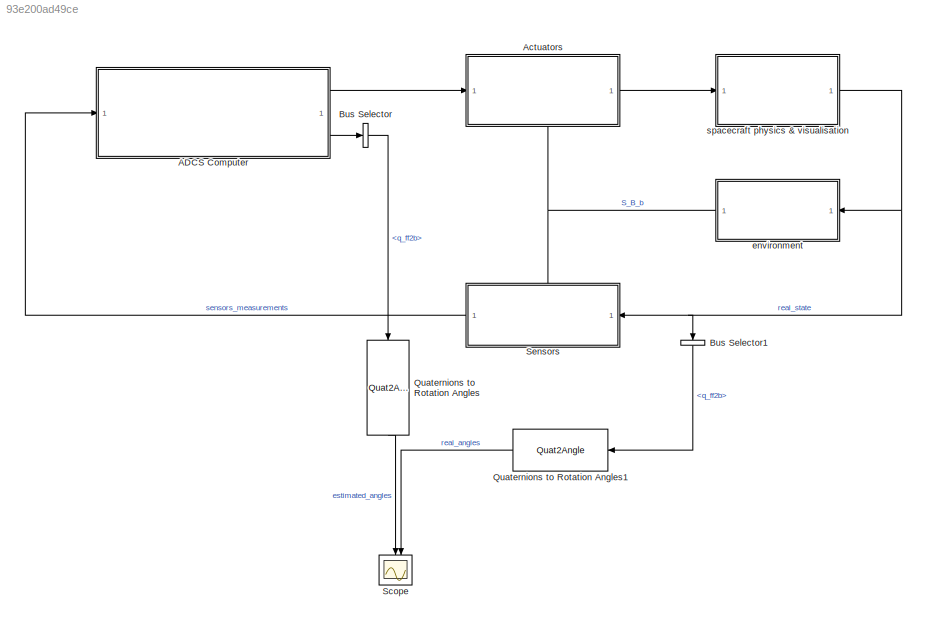
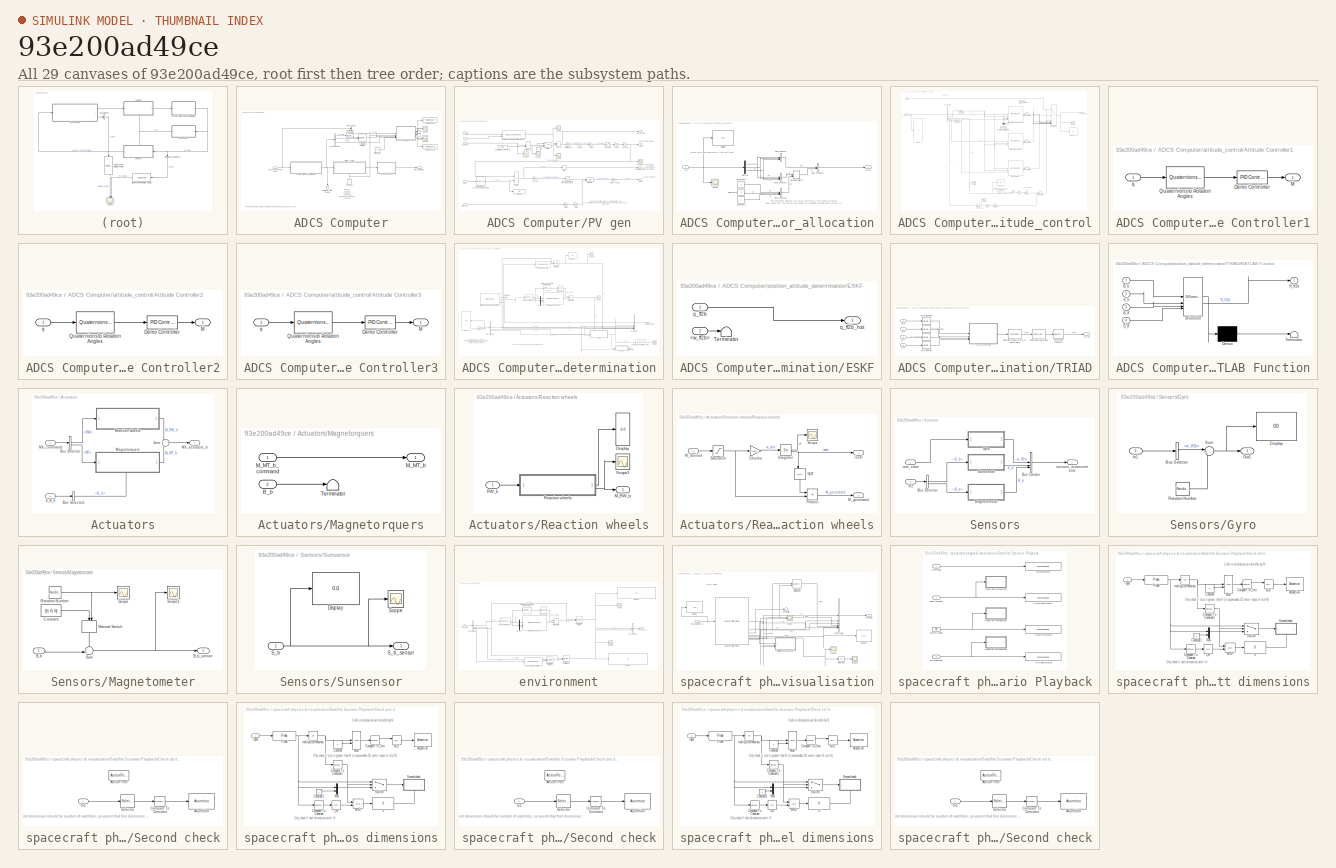
[diagram: thumbnail index - all 29 canvases of the model, root first then tree order]
MODEL slx_93e200ad49ce
KIND model
CONFIG AbsTol = 1e-5
CONFIG EnableMultiTasking = off
CONFIG FixedStep = 1
CONFIG MaxStep = 10
CONFIG MinStep = 1e-3
CONFIG RelTol = 1e-5
CONFIG SampleTimeConstraint = Unconstrained
CONFIG SolverName = ode4
CONFIG StartTime = 0.0
CONFIG StopTime = 94*60
BLOCK [SubSystem] ADCS Computer
  NameLocation = top
BLOCK [BusSelector] ADCS Computer/Bus Selector
  OutputSignals = S_b
BLOCK [BusSelector] ADCS Computer/Bus Selector1
  OutputSignals = q_icrf2ff,X_ff,t_JD
BLOCK [Constant] ADCS Computer/Constant
  NameLocation = right
BLOCK [Constant] ADCS Computer/Initial SOC(%)
  Value = 50
BLOCK [Outport] ADCS Computer/Mb_command
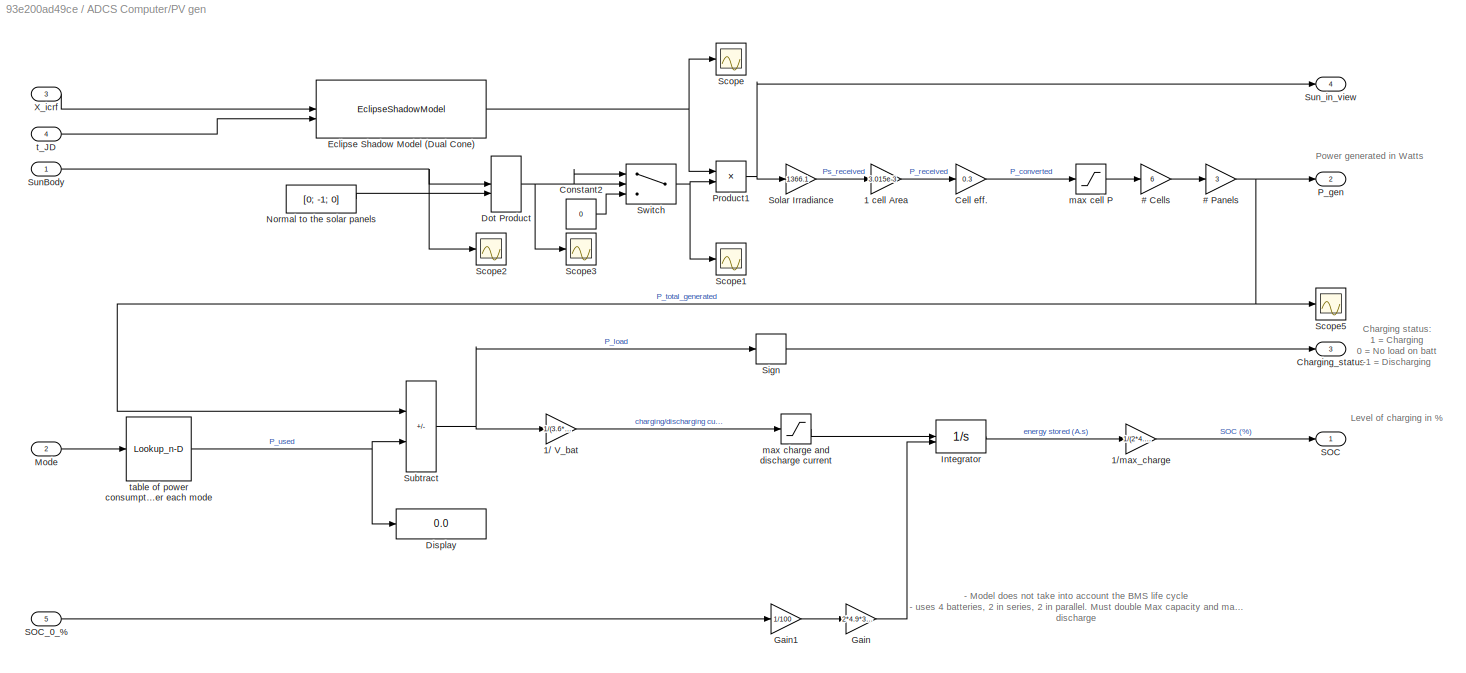
BLOCK [SubSystem] ADCS Computer/PV gen
BLOCK [Gain] ADCS Computer/PV gen/# Cells
  Gain = 6
BLOCK [Gain] ADCS Computer/PV gen/# Panels
  Gain = 3
BLOCK [Gain] ADCS Computer/PV gen/1 cell Area
  Gain = 3.015e-3
BLOCK [Gain] ADCS Computer/PV gen/1// V_bat
  Gain = 1/(3.6*2)
BLOCK [Gain] ADCS Computer/PV gen/1//max_charge
  Gain = 1/(2*4.9*3600)
BLOCK [Gain] ADCS Computer/PV gen/Cell eff.
  Gain = 0.3
BLOCK [Outport] ADCS Computer/PV gen/Charging_status
  Port = 3
BLOCK [Constant] ADCS Computer/PV gen/Constant2
  Value = 0
BLOCK [Display] ADCS Computer/PV gen/Display
  Decimation = 1
BLOCK [DotProduct] ADCS Computer/PV gen/Dot Product
  OutDataTypeStr = Inherit: Inherit via internal rule
BLOCK [EclipseShadowModel] ADCS Computer/PV gen/Eclipse Shadow Model (Dual Cone)
  ephemerisStartDate = juliandate(2025, 1, 1)
  startDate = juliandate(2025, 1, 1)
  timeSource = Port (Julian date)
  useEphemerisDateRange = off
BLOCK [Gain] ADCS Computer/PV gen/Gain
  Gain = 2*4.9*3600
BLOCK [Gain] ADCS Computer/PV gen/Gain1
  Gain = 1/100
BLOCK [Integrator] ADCS Computer/PV gen/Integrator
  InitialCondition = 2*4.9*3600
  InitialConditionSource = external
  LimitOutput = on
  LowerSaturationLimit = 0
  UpperSaturationLimit = 2*4.9*3600
BLOCK [Inport] ADCS Computer/PV gen/Mode
  Port = 2
BLOCK [Constant] ADCS Computer/PV gen/Normal to the solar panels
  Value = [0; -1; 0]
BLOCK [Outport] ADCS Computer/PV gen/P_gen
  Port = 2
BLOCK [Product] ADCS Computer/PV gen/Product1
BLOCK [Outport] ADCS Computer/PV gen/SOC
BLOCK [Inport] ADCS Computer/PV gen/SOC_0_%
  Port = 5
BLOCK [Scope] ADCS Computer/PV gen/Scope
  ActiveDisplayYMaximum = 1.000001245662046
  ActiveDisplayYMinimum = 0.999997211203313
  DataLoggingVariableName = ScopeData1
  Floating = off
  GraphicalSettings = {"AxesScalingProperties":{"AlignXAxis":"Center","AlignYAxis":"Center","AutoScaleXAxisLimits":false,"AxesScaling":"Manual","AxesScalingNumUpdates":10,"ExpandOnly":true,"ScaleAxesLimitsAtStop":false,"XAxisDataRange":100,"YAxisDataRange":80},"DisplayProperties":{"ColorOrder":["auto","auto","auto","auto","auto","auto","auto","auto","auto","auto","auto","auto","auto","auto","auto","auto","auto","auto",...<+2006ch>
  MultipleDisplayCache = [{"MaxYLimMag":1.125,"MaxYLimReal":1.000001245662046,"MinYLimMag":0,"MinYLimReal":0.999997211203313,"PlotAsMagnitudePhase":false,"ShowGrid":true,"ShowLegend":false,"Title":"%<SignalLabel>","YLabel":""}]
  NumInputPorts = 1
  ScopeFrameLocation = window
  WasSavedAsWebScope = on
  WindowPosition = [488.000000,222.000000,560.000000,420.000000,]
BLOCK [Scope] ADCS Computer/PV gen/Scope1
  ActiveDisplayYMaximum = 1.0507685968732166
  ActiveDisplayYMinimum = -0.12862193886085324
  DataLoggingVariableName = ScopeData2
  Floating = off
  GraphicalSettings = {"AxesScalingProperties":{"AlignXAxis":"Center","AlignYAxis":"Center","AutoScaleXAxisLimits":false,"AxesScaling":"Manual","AxesScalingNumUpdates":10,"ExpandOnly":true,"ScaleAxesLimitsAtStop":false,"XAxisDataRange":100,"YAxisDataRange":80},"DisplayProperties":{"ColorOrder":["auto","auto","auto","auto","auto","auto","auto","auto","auto","auto","auto","auto","auto","auto","auto","auto","auto","auto",...<+2004ch>
  MultipleDisplayCache = [{"MaxYLimMag":1.0614514821606629,"MaxYLimReal":1.0507685968732166,"MinYLimMag":0,"MinYLimReal":-0.12862193886085324,"PlotAsMagnitudePhase":false,"ShowGrid":true,"ShowLegend":false,"Title":"%<SignalLabel>","YLabel":""}]
  NumInputPorts = 1
  ScopeFrameLocation = window
  WasSavedAsWebScope = on
  WindowPosition = [488.000000,222.000000,560.000000,420.000000,]
BLOCK [Scope] ADCS Computer/PV gen/Scope2
  ActiveDisplayYMaximum = 1.8414432026836681E+8
  ActiveDisplayYMinimum = -1.888314007094624E+8
  DataLoggingVariableName = ScopeData3
  Floating = off
  GraphicalSettings = {"Style":{"BackgroundColor":[0.12941176470588237,0.12941176470588237,0.12941176470588237],"AxesColor":[0.07058823529411765,0.07058823529411765,0.07058823529411765],"LabelsColor":[0.8509803921568627,0.8509803921568627,0.8509803921568627],"PreserveColors":false,"Visible":[true,true,true],"LineStyle":["-","-","-"],"LineWidth":[1.5,1.5,1.5],"BarWidth":[0.9,0.9,0.9],"LineColor":["auto","auto","auto"],"...<+2238ch>
  MultipleDisplayCache = [{"MaxYLimMag":1.888314007094624E+8,"MaxYLimReal":1.8414432026836681E+8,"MinYLimMag":0,"MinYLimReal":-1.888314007094624E+8,"PlotAsMagnitudePhase":false,"ShowGrid":true,"ShowLegend":true,"Title":"%<SignalLabel>","YLabel":""}]
  NumInputPorts = 1
  ScopeFrameLocation = window
  ShowLegend = on
  WasSavedAsWebScope = on
  WindowPosition = [488.000000,222.000000,560.000000,420.000000,]
BLOCK [Scope] ADCS Computer/PV gen/Scope3
  ActiveDisplayYMaximum = 1.3555163431944595
  ActiveDisplayYMinimum = -1.6944670146088379
  DataLoggingVariableName = ScopeData4
  Floating = off
  GraphicalSettings = {"AxesScalingProperties":{"AlignXAxis":"Center","AlignYAxis":"Center","AutoScaleXAxisLimits":false,"AxesScaling":"Manual","AxesScalingNumUpdates":10,"ExpandOnly":true,"ScaleAxesLimitsAtStop":false,"XAxisDataRange":100,"YAxisDataRange":80},"DisplayProperties":{"ColorOrder":["auto","auto","auto","auto","auto","auto","auto","auto","auto","auto","auto","auto","auto","auto","auto","auto","auto","auto",...<+2016ch>
  MultipleDisplayCache = [{"MaxYLimMag":1.1402567662134069,"MaxYLimReal":1.3555163431944595,"MinYLimMag":0,"MinYLimReal":-1.6944670146088379,"PlotAsMagnitudePhase":false,"ShowGrid":true,"ShowLegend":false,"Title":"%<SignalLabel>","YLabel":""}]
  NumInputPorts = 1
  ScopeFrameLocation = window
  WasSavedAsWebScope = on
  WindowPosition = [488.000000,222.000000,560.000000,420.000000,]
BLOCK [Scope] ADCS Computer/PV gen/Scope5
  ActiveDisplayYMaximum = 19.168186858045033
  ActiveDisplayYMinimum = -9.7669917154673218
  DataLoggingVariableName = ScopeData6
  Floating = off
  GraphicalSettings = {"Style":{"BackgroundColor":[0.12941176470588237,0.12941176470588237,0.12941176470588237],"AxesColor":[0.07058823529411765,0.07058823529411765,0.07058823529411765],"LabelsColor":[0.8509803921568627,0.8509803921568627,0.8509803921568627],"PreserveColors":false,"Visible":[true],"LineStyle":["-"],"LineWidth":[1.5],"BarWidth":[0.9],"LineColor":["auto"],"LineFaceAlpha":[1],"LineEdgeAlpha":[1],"Marker":...<+1999ch>
  MultipleDisplayCache = [{"MaxYLimMag":10.623762500464176,"MaxYLimReal":19.168186858045033,"MinYLimMag":0,"MinYLimReal":-9.7669917154673218,"PlotAsMagnitudePhase":false,"ShowGrid":true,"ShowLegend":false,"Title":"%<SignalLabel>","YLabel":""}]
  NumInputPorts = 1
  ScopeFrameLocation = window
  WasSavedAsWebScope = on
  WindowPosition = [83.000000,-92.000000,1440.000000,844.000000,]
BLOCK [Signum] ADCS Computer/PV gen/Sign
BLOCK [Gain] ADCS Computer/PV gen/Solar Irradiance
  Gain = 1366.1
BLOCK [Sum] ADCS Computer/PV gen/Subtract
  IconShape = rectangular
  Inputs = +-
BLOCK [Inport] ADCS Computer/PV gen/SunBody
BLOCK [Outport] ADCS Computer/PV gen/Sun_in_view
  Port = 4
BLOCK [Switch] ADCS Computer/PV gen/Switch
  Criteria = u2 > Threshold
  InputSameDT = off
  SaturateOnIntegerOverflow = off
BLOCK [Inport] ADCS Computer/PV gen/X_icrf
  Port = 3
BLOCK [Saturate] ADCS Computer/PV gen/max cell P
  LowerLimit = 0
  UpperLimit = 1.23
BLOCK [Saturate] ADCS Computer/PV gen/max charge and discharge current
  LowerLimit = -(2*4.9)
  UpperLimit = (2*2.45)
BLOCK [Inport] ADCS Computer/PV gen/t_JD
  Port = 4
BLOCK [Lookup_n-D] ADCS Computer/PV gen/table of power consumption per each mode
  BreakpointsForDimension1 = [0, 1, 2, 3, 4, 5, 6, 7, 8, 9]
  InputPortMap = u0
  InternalRulePriority = Speed
  NumberOfTableDimensions = 1
  RndMeth = Simplest
  Table = [0, 2.2, 4.93, 5.32, 8.97, 12.44, 8.66, 10.93, 11.79, 6.86]
BLOCK [Reference] ADCS Computer/Quaternion Conjugate  REF=aerolibutil/Quaternion
Conjugate
  SourceBlock = aerolibutil/Quaternion\nConjugate
  SourceType = Quaternion Conjugate
BLOCK [Reference] ADCS Computer/Quaternion Rotation  REF=aerolibutil/Quaternion
Rotation
  SourceBlock = aerolibutil/Quaternion\nRotation
  SourceType = Quaternion Rotation
BLOCK [Scope] ADCS Computer/Scope
  ActiveDisplayYMaximum = 0.573349016920102
  ActiveDisplayYMinimum = 0.488465616841008
  DataLoggingVariableName = ScopeData3
  Floating = off
  GraphicalSettings = {"AxesScalingProperties":{"AlignXAxis":"Center","AlignYAxis":"Center","AutoScaleXAxisLimits":false,"AxesScaling":"Manual","AxesScalingNumUpdates":10,"ExpandOnly":true,"ScaleAxesLimitsAtStop":false,"XAxisDataRange":100,"YAxisDataRange":80},"DisplayProperties":{"ColorOrder":["auto","auto","auto","auto","auto","auto","auto","auto","auto","auto","auto","auto","auto","auto","auto","auto","auto","auto",...<+2058ch>
  MultipleDisplayCache = [{"MaxYLimMag":0.56208618256332543,"MaxYLimReal":0.573349016920102,"MinYLimMag":0.49229279356418443,"MinYLimReal":0.488465616841008,"PlotAsMagnitudePhase":false,"ShowGrid":true,"ShowLegend":false,"Title":"%<SignalLabel>","YLabel":""}]
  NumInputPorts = 1
  ScopeFrameLocation = window
  WasSavedAsWebScope = on
  WindowPosition = [488.000000,222.000000,560.000000,420.000000,]
BLOCK [Scope] ADCS Computer/Scope1
  ActiveDisplayYMaximum = 1.0056078217841382
  ActiveDisplayYMinimum = 0.94952960394275721
  DataLoggingVariableName = ScopeData16
  Floating = off
  GraphicalSettings = {"Style":{"BackgroundColor":[0.12941176470588237,0.12941176470588237,0.12941176470588237],"AxesColor":[0.07058823529411765,0.07058823529411765,0.07058823529411765],"LabelsColor":[0.8509803921568627,0.8509803921568627,0.8509803921568627],"PreserveColors":false,"Visible":[true],"LineStyle":["-"],"LineWidth":[1.5],"BarWidth":[0.9],"LineColor":["auto"],"LineFaceAlpha":[1],"LineEdgeAlpha":[1],"Marker":...<+2053ch>
  MultipleDisplayCache = [{"MaxYLimMag":1.0056078217841382,"MaxYLimReal":1.0056078217841382,"MinYLimMag":0.94952960394275721,"MinYLimReal":0.94952960394275721,"PlotAsMagnitudePhase":false,"ShowGrid":true,"ShowLegend":false,"Title":"%<SignalLabel>","YLabel":""}]
  NumInputPorts = 1
  ScopeFrameLocation = window
  WasSavedAsWebScope = on
  WindowPosition = [488.000000,222.000000,560.000000,420.000000,]
BLOCK [Terminator] ADCS Computer/Terminator
BLOCK [Terminator] ADCS Computer/Terminator1
BLOCK [ToWorkspace] ADCS Computer/To Workspace
  FixptAsFi = on
  MaxDataPoints = inf
  SampleTime = -1
  SaveFormat = Timeseries
  VariableName = SOC
BLOCK [ToWorkspace] ADCS Computer/To Workspace1
  FixptAsFi = on
  MaxDataPoints = inf
  SampleTime = -1
  SaveFormat = Timeseries
  VariableName = SIV
BLOCK [SubSystem] ADCS Computer/actuator_allocation
BLOCK [BusCreator] ADCS Computer/actuator_allocation/Bus Creator
  DisplayOption = bar
  InheritFromInputs = on
  Inputs = 3
BLOCK [BusCreator] ADCS Computer/actuator_allocation/Bus Creator1
  DisplayOption = bar
  InheritFromInputs = on
  Inputs = 3
BLOCK [BusCreator] ADCS Computer/actuator_allocation/Bus Creator2
  DisplayOption = bar
  InheritFromInputs = on
  Inputs = 2
BLOCK [BusCreator] ADCS Computer/actuator_allocation/Bus Creator3
  DisplayOption = bar
  InheritFromInputs = on
  Inputs = 3
BLOCK [Constant] ADCS Computer/actuator_allocation/Constant1
  Value = 0
BLOCK [Constant] ADCS Computer/actuator_allocation/Constant2
  Value = 0
BLOCK [Constant] ADCS Computer/actuator_allocation/Constant3
  Value = 0
BLOCK [Demux] ADCS Computer/actuator_allocation/Demux
  Outputs = 3
BLOCK [Display] ADCS Computer/actuator_allocation/Display
  Decimation = 1
BLOCK [Inport] ADCS Computer/actuator_allocation/In1
BLOCK [ManualSwitch] ADCS Computer/actuator_allocation/Manual Switch
  CurrentSetting = 0
BLOCK [Outport] ADCS Computer/actuator_allocation/Out1
BLOCK [Scope] ADCS Computer/actuator_allocation/Scope
  ActiveDisplayYMaximum = 1.25E-5
  ActiveDisplayYMinimum = -1.25E-5
  DataLoggingVariableName = ScopeData9
  Floating = off
  GraphicalSettings = {"Style":{"BackgroundColor":[0.12941176470588237,0.12941176470588237,0.12941176470588237],"AxesColor":[0.07058823529411765,0.07058823529411765,0.07058823529411765],"LabelsColor":[0.8509803921568627,0.8509803921568627,0.8509803921568627],"PreserveColors":false,"Visible":[true,true,true],"LineStyle":["-","-","-"],"LineWidth":[1.5,1.5,1.5],"BarWidth":[0.9,0.9,0.9],"LineColor":["auto","auto","auto"],"...<+2114ch>
  MultipleDisplayCache = [{"MaxYLimMag":1.25E-5,"MaxYLimReal":1.25E-5,"MinYLimMag":0,"MinYLimReal":-1.25E-5,"PlotAsMagnitudePhase":false,"ShowGrid":true,"ShowLegend":false,"Title":"%<SignalLabel>","YLabel":""}]
  NumInputPorts = 1
  ScopeFrameLocation = window
  WasSavedAsWebScope = on
  WindowPosition = [488.000000,222.000000,560.000000,420.000000,]
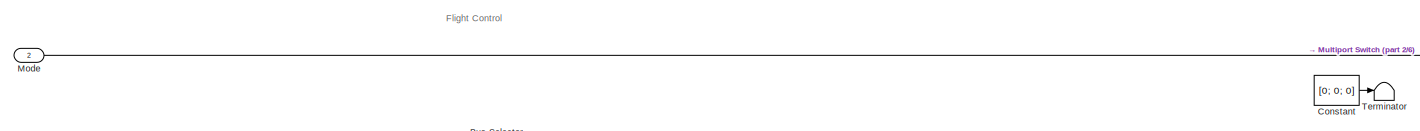
[diagram: ADCS Computer/attitude_control - part 1/6, top center region]
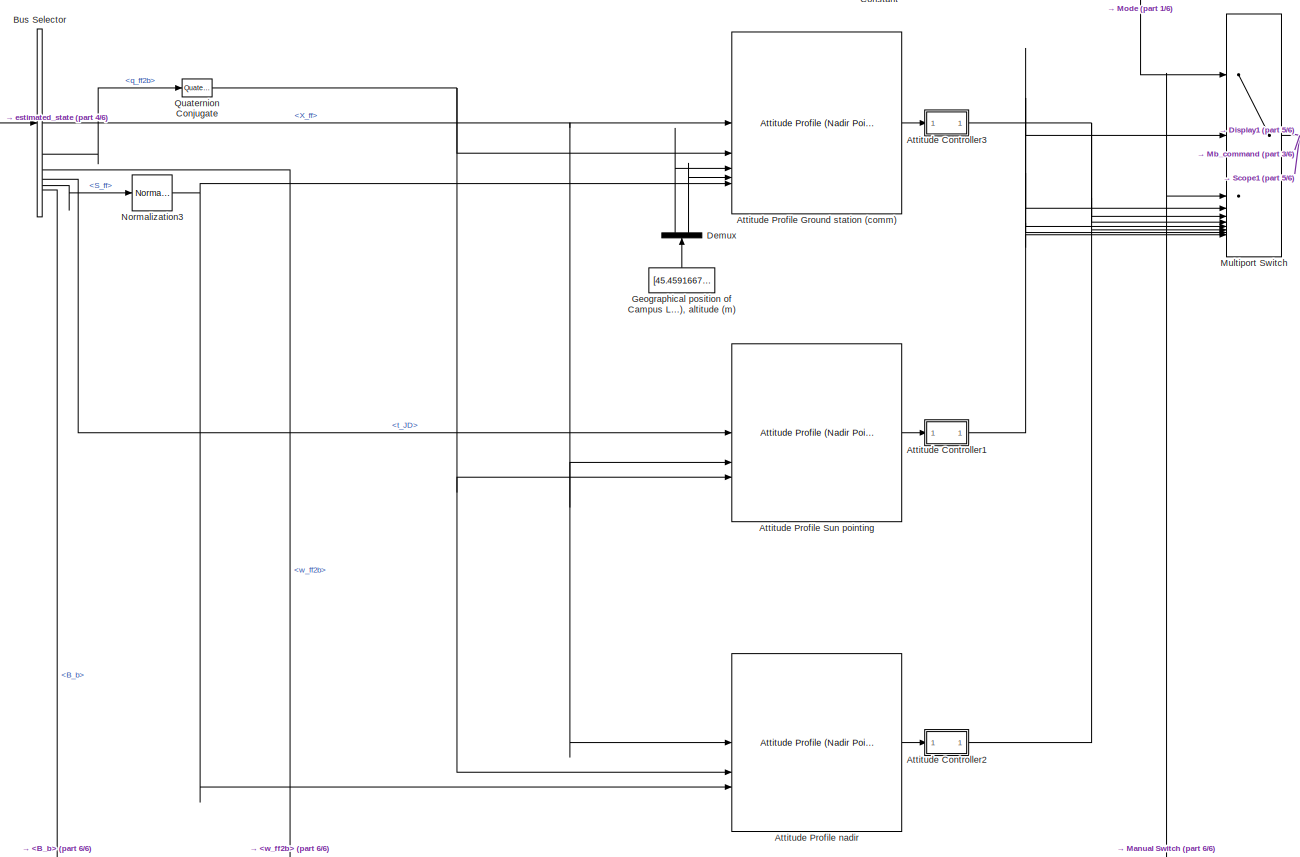
[diagram: ADCS Computer/attitude_control - part 2/6, central region]
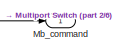
[diagram: ADCS Computer/attitude_control - part 3/6, top right region]
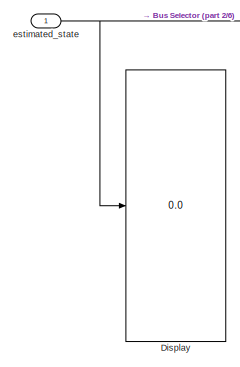
[diagram: ADCS Computer/attitude_control - part 4/6, top left region]
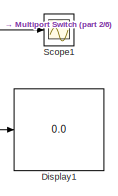
[diagram: ADCS Computer/attitude_control - part 5/6, top right region]
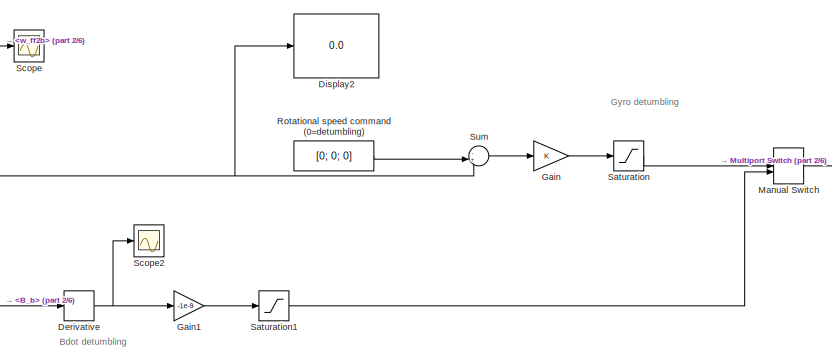
[diagram: ADCS Computer/attitude_control - part 6/6, bottom center region]
BLOCK [SubSystem] ADCS Computer/attitude_control
  NameLocation = top
  PortSchema = {"entries":[{"content":{"sides":[{"content":{"connectorIds":["In1"]},"type":"ConnectorPlacement.EquallySpacedRectSide","uuid":"7a9b0a4d-90b9-4131-b0f5-e1faac795226"},{"content":{"connectorIds":["Out1"],"side":"RIGHT"},"type":"ConnectorPlacement.EquallySpacedRectSide","uuid":"a01d81c0-ef9b-4489-b3b4-96dbdcebba1c"},{"content":{"side":"TOP"},"type":"ConnectorPlacement.EquallySpacedRectSide","uuid":"a...<+371ch>
BLOCK [SubSystem] ADCS Computer/attitude_control/Attitude Controller1
BLOCK [Reference] ADCS Computer/attitude_control/Attitude Controller1/Demo Controller  REF=slpidlib/PID Controller
  SourceBlock = slpidlib/PID Controller
  SourceType = PID 1dof
BLOCK [Outport] ADCS Computer/attitude_control/Attitude Controller1/M
BLOCK [Reference] ADCS Computer/attitude_control/Attitude Controller1/Quaternions to Rotation Angles  REF=sharedtransform/Quaternions to Rotation Angles
  AttributesFormatString = Rotation Order: %<rotationOrder>
  SourceBlock = sharedtransform/Quaternions to Rotation Angles
  SourceType = Quat2Ang
BLOCK [Inport] ADCS Computer/attitude_control/Attitude Controller1/q
BLOCK [SubSystem] ADCS Computer/attitude_control/Attitude Controller2
BLOCK [Reference] ADCS Computer/attitude_control/Attitude Controller2/Demo Controller  REF=slpidlib/PID Controller
  SourceBlock = slpidlib/PID Controller
  SourceType = PID 1dof
BLOCK [Outport] ADCS Computer/attitude_control/Attitude Controller2/M
BLOCK [Reference] ADCS Computer/attitude_control/Attitude Controller2/Quaternions to Rotation Angles  REF=sharedtransform/Quaternions to Rotation Angles
  AttributesFormatString = Rotation Order: %<rotationOrder>
  SourceBlock = sharedtransform/Quaternions to Rotation Angles
  SourceType = Quat2Ang
BLOCK [Inport] ADCS Computer/attitude_control/Attitude Controller2/q
BLOCK [SubSystem] ADCS Computer/attitude_control/Attitude Controller3
BLOCK [Reference] ADCS Computer/attitude_control/Attitude Controller3/Demo Controller  REF=slpidlib/PID Controller
  SourceBlock = slpidlib/PID Controller
  SourceType = PID 1dof
BLOCK [Outport] ADCS Computer/attitude_control/Attitude Controller3/M
BLOCK [Reference] ADCS Computer/attitude_control/Attitude Controller3/Quaternions to Rotation Angles  REF=sharedtransform/Quaternions to Rotation Angles
  AttributesFormatString = Rotation Order: %<rotationOrder>
  SourceBlock = sharedtransform/Quaternions to Rotation Angles
  SourceType = Quat2Ang
BLOCK [Inport] ADCS Computer/attitude_control/Attitude Controller3/q
BLOCK [Reference] ADCS Computer/attitude_control/Attitude Profile Ground station (comm)  REF=aerolibsatdyn/Attitude Profile
(Nadir Pointing)
  SourceBlock = aerolibsatdyn/Attitude Profile\n(Nadir Pointing)
  SourceType = Attitude Profile
BLOCK [Reference] ADCS Computer/attitude_control/Attitude Profile Sun pointing  REF=aerolibsatdyn/Attitude Profile
(Nadir Pointing)
  SourceBlock = aerolibsatdyn/Attitude Profile\n(Nadir Pointing)
  SourceType = Attitude Profile
BLOCK [Reference] ADCS Computer/attitude_control/Attitude Profile nadir  REF=aerolibsatdyn/Attitude Profile
(Nadir Pointing)
  SourceBlock = aerolibsatdyn/Attitude Profile\n(Nadir Pointing)
  SourceType = Attitude Profile
BLOCK [BusSelector] ADCS Computer/attitude_control/Bus Selector
  OutputSignals = X_ff,q_ff2b,w_ff2b,t_JD,S_ff,B_b
BLOCK [Constant] ADCS Computer/attitude_control/Constant
  Value = [0; 0; 0]
BLOCK [Demux] ADCS Computer/attitude_control/Demux
  NameLocation = right
  Outputs = [2 1]
BLOCK [Derivative] ADCS Computer/attitude_control/Derivative
BLOCK [Display] ADCS Computer/attitude_control/Display
  Decimation = 1
BLOCK [Display] ADCS Computer/attitude_control/Display1
  Decimation = 1
BLOCK [Display] ADCS Computer/attitude_control/Display2
  Decimation = 1
BLOCK [Gain] ADCS Computer/attitude_control/Gain
BLOCK [Gain] ADCS Computer/attitude_control/Gain1
  Gain = -1e-9
BLOCK [Constant] ADCS Computer/attitude_control/Geographical position of Campus Loyola Latitude (deg), Longitude (deg), altitude (m)
  NameLocation = right
  Value = [45.4591667, -73.63833333333334, 0]
BLOCK [ManualSwitch] ADCS Computer/attitude_control/Manual Switch
BLOCK [Outport] ADCS Computer/attitude_control/Mb_command
BLOCK [Inport] ADCS Computer/attitude_control/Mode
  Port = 2
BLOCK [MultiPortSwitch] ADCS Computer/attitude_control/Multiport Switch
  InputSameDT = off
  Inputs = 9
  SaturateOnIntegerOverflow = off
BLOCK [Reference] ADCS Computer/attitude_control/Normalization3  REF=dspmathops/Normalization
  SourceBlock = dspmathops/Normalization
  SourceType = Normalization
BLOCK [Reference] ADCS Computer/attitude_control/Quaternion Conjugate  REF=aerolibutil/Quaternion
Conjugate
  SourceBlock = aerolibutil/Quaternion\nConjugate
  SourceType = Quaternion Conjugate
BLOCK [Constant] ADCS Computer/attitude_control/Rotational speed command (0=detumbling)
  Value = [0; 0; 0]
BLOCK [Saturate] ADCS Computer/attitude_control/Saturation
  LowerLimit = -0.00001
  UpperLimit = 0.00001
BLOCK [Saturate] ADCS Computer/attitude_control/Saturation1
  LowerLimit = -0.00001
  UpperLimit = 0.00001
BLOCK [Scope] ADCS Computer/attitude_control/Scope
  ActiveDisplayYMaximum = 0.00524980222317031
  ActiveDisplayYMinimum = -0.0018120002445556303
  DataLoggingVariableName = ScopeData13
  Floating = off
  GraphicalSettings = {"AxesScalingProperties":{"AlignXAxis":"Center","AlignYAxis":"Center","AutoScaleXAxisLimits":false,"AxesScaling":"Manual","AxesScalingNumUpdates":10,"ExpandOnly":true,"ScaleAxesLimitsAtStop":false,"XAxisDataRange":100,"YAxisDataRange":80},"DisplayProperties":{"ColorOrder":["auto","auto","auto","auto","auto","auto","auto","auto","auto","auto","auto","auto","auto","auto","auto","auto","auto","auto",...<+2254ch>
  MultipleDisplayCache = [{"MaxYLimMag":5.632642864378445,"MaxYLimReal":0.00524980222317031,"MinYLimMag":0,"MinYLimReal":-0.0018120002445556303,"PlotAsMagnitudePhase":false,"ShowGrid":true,"ShowLegend":false,"Title":"%<SignalLabel>","YLabel":""}]
  NumInputPorts = 1
  ScopeFrameLocation = window
  WasSavedAsWebScope = on
  WindowPosition = [488.000000,222.000000,560.000000,420.000000,]
BLOCK [Scope] ADCS Computer/attitude_control/Scope1
  ActiveDisplayYMaximum = 6.9758844381529158E-6
  ActiveDisplayYMinimum = -5.8878268741138595E-6
  DataLoggingVariableName = ScopeData14
  Floating = off
  GraphicalSettings = {"AxesScalingProperties":{"AlignXAxis":"Center","AlignYAxis":"Center","AutoScaleXAxisLimits":false,"AxesScaling":"Manual","AxesScalingNumUpdates":10,"ExpandOnly":true,"ScaleAxesLimitsAtStop":false,"XAxisDataRange":100,"YAxisDataRange":80},"DisplayProperties":{"ColorOrder":["auto","auto","auto","auto","auto","auto","auto","auto","auto","auto","auto","auto","auto","auto","auto","auto","auto","auto",...<+2238ch>
  MultipleDisplayCache = [{"MaxYLimMag":4.7688516606088691E-6,"MaxYLimReal":6.9758844381529158E-6,"MinYLimMag":0,"MinYLimReal":-5.8878268741138595E-6,"PlotAsMagnitudePhase":false,"ShowGrid":true,"ShowLegend":false,"Title":"%<SignalLabel>","YLabel":""}]
  NumInputPorts = 1
  ScopeFrameLocation = window
  WasSavedAsWebScope = on
  WindowPosition = [488.000000,222.000000,560.000000,420.000000,]
BLOCK [Scope] ADCS Computer/attitude_control/Scope2
  ActiveDisplayYMaximum = 3973.6908386805353
  ActiveDisplayYMinimum = -4090.3080884974261
  DataLoggingVariableName = ScopeData18
  Floating = off
  GraphicalSettings = {"AxesScalingProperties":{"AlignXAxis":"Center","AlignYAxis":"Center","AutoScaleXAxisLimits":false,"AxesScaling":"Manual","AxesScalingNumUpdates":10,"ExpandOnly":true,"ScaleAxesLimitsAtStop":false,"XAxisDataRange":100,"YAxisDataRange":80},"DisplayProperties":{"ColorOrder":["auto","auto","auto","auto","auto","auto","auto","auto","auto","auto","auto","auto","auto","auto","auto","auto","auto","auto",...<+2166ch>
  MultipleDisplayCache = [{"MaxYLimMag":4768.8516606088688,"MaxYLimReal":3973.6908386805353,"MinYLimMag":0,"MinYLimReal":-4090.3080884974261,"PlotAsMagnitudePhase":false,"ShowGrid":true,"ShowLegend":false,"Title":"%<SignalLabel>","YLabel":""}]
  NumInputPorts = 1
  ScopeFrameLocation = window
  WasSavedAsWebScope = on
  WindowPosition = [488.000000,222.000000,560.000000,420.000000,]
BLOCK [Sum] ADCS Computer/attitude_control/Sum
  Inputs = -+|
BLOCK [Terminator] ADCS Computer/attitude_control/Terminator
BLOCK [Inport] ADCS Computer/attitude_control/estimated_state
BLOCK [Outport] ADCS Computer/estimated_state_debug
  NameLocation = left
  Port = 2
BLOCK [SubSystem] ADCS Computer/position_attitude_determination
BLOCK [BusCreator] ADCS Computer/position_attitude_determination/Bus Creator
  DisplayOption = bar
  InheritFromInputs = on
  Inputs = 7
BLOCK [BusSelector] ADCS Computer/position_attitude_determination/Bus Selector
  OutputSignals = w_ff2b,S_b,B_b
BLOCK [Demux] ADCS Computer/position_attitude_determination/Demux1
  Outputs = 2
BLOCK [Reference] ADCS Computer/position_attitude_determination/Direction Cosine Matrix ECEF to NED1  REF=aerolibtransform2/Direction Cosine Matrix
ECEF to NED
  SourceBlock = aerolibtransform2/Direction Cosine Matrix\nECEF to NED
  SourceType = DCM ECEF to NED
BLOCK [Display] ADCS Computer/position_attitude_determination/Display
  Decimation = 1
BLOCK [Display] ADCS Computer/position_attitude_determination/Display1
  Decimation = 1
BLOCK [ECEF2LLA] ADCS Computer/position_attitude_determination/ECEF Position to LLA1
BLOCK [SubSystem] ADCS Computer/position_attitude_determination/ESKF
  ShowPortLabels = SignalName
BLOCK [Inport] ADCS Computer/position_attitude_determination/ESKF/<w_ff2b>
  Port = 2
BLOCK [Terminator] ADCS Computer/position_attitude_determination/ESKF/Terminator
BLOCK [Inport] ADCS Computer/position_attitude_determination/ESKF/q_ff2b
BLOCK [Outport] ADCS Computer/position_attitude_determination/ESKF/q_ff2b_hat
BLOCK [Product] ADCS Computer/position_attitude_determination/MatrixMultiply1
  Multiplication = Matrix(*)
BLOCK [OrbitPropagator] ADCS Computer/position_attitude_determination/Orbit Propagator Kepler (unperturbed)
  argPeriapsis = spacecraft.orbit.argp
  customJ2 = 1.0826269e-03
  customMu = 4.305e13
  customOmega = 4.06125949e-3
  customR = 3396200
  dragArea = 0.03
  eccentricity = spacecraft.orbit.e
  fixedPosition = [-4142689.0 -2676864.7 -4669861.6]
  fixedVelocity = [1452.7 -6720.7 2568.1]
  inclination = spacecraft.orbit.inclination
  inertialPosition = [3649700.0 3308200.0 -4676600.0]
  inertialVelocity = [-2750.8 6666.4 2573.4]
  mass = spacecraft.mass
  outportFrame = Fixed-frame
  outputTransform = on
  propagator = Numerical (high precision)
  raan = spacecraft.orbit.RAAN
  semiMajorAxis = spacecraft.orbit.a
  srpArea = 0.5
  startDate = spacecraft.initial_conditions.time
  trueAnomaly = spacecraft.orbit.true_anomaly
  useDrag = on
  useSRP = on
BLOCK [PlanetaryEphem] ADCS Computer/position_attitude_determination/Planetary Ephemeris
  outputVelocity = off
  target = Sun
BLOCK [Reference] ADCS Computer/position_attitude_determination/Quaternion Rotation1  REF=aerolibutil/Quaternion
Rotation
  SourceBlock = aerolibutil/Quaternion\nRotation
  SourceType = Quaternion Rotation
BLOCK [Quat2Angle] ADCS Computer/position_attitude_determination/Quaternions to Rotation Angles
  AttributesFormatString = Rotation Order: %<rotationOrder>
  rotationOrder = XYZ
BLOCK [Scope] ADCS Computer/position_attitude_determination/Scope
  ActiveDisplayYMaximum = 5.07457557405816
  ActiveDisplayYMinimum = -1.1630374261336418
  DataLoggingVariableName = ScopeData2
  Floating = off
  GraphicalSettings = {"AxesScalingProperties":{"AlignXAxis":"Center","AlignYAxis":"Center","AutoScaleXAxisLimits":false,"AxesScaling":"Manual","AxesScalingNumUpdates":10,"ExpandOnly":true,"ScaleAxesLimitsAtStop":false,"XAxisDataRange":100,"YAxisDataRange":80},"DisplayProperties":{"ColorOrder":["auto","auto","auto","auto","auto","auto","auto","auto","auto","auto","auto","auto","auto","auto","auto","auto","auto","auto",...<+2388ch>
  MultipleDisplayCache = [{"MaxYLimMag":3.5315011073218057,"MaxYLimReal":5.07457557405816,"MinYLimMag":0,"MinYLimReal":-1.1630374261336418,"PlotAsMagnitudePhase":false,"ShowGrid":true,"ShowLegend":false,"Title":"%<SignalLabel>","YLabel":""}]
  NumInputPorts = 1
  ScopeFrameLocation = window
  WasSavedAsWebScope = on
  WindowPosition = [488.000000,222.000000,560.000000,420.000000,]
BLOCK [Scope] ADCS Computer/position_attitude_determination/Scope1
  ActiveDisplayYMaximum = 21978.109443360976
  ActiveDisplayYMinimum = -25705.924520638517
  DataLoggingVariableName = ScopeData4
  Floating = off
  GraphicalSettings = {"AxesScalingProperties":{"AlignXAxis":"Center","AlignYAxis":"Center","AutoScaleXAxisLimits":false,"AxesScaling":"Manual","AxesScalingNumUpdates":10,"ExpandOnly":true,"ScaleAxesLimitsAtStop":false,"XAxisDataRange":100,"YAxisDataRange":80},"DisplayProperties":{"ColorOrder":["auto","auto","auto","auto","auto","auto","auto","auto","auto","auto","auto","auto","auto","auto","auto","auto","auto","auto",...<+2230ch>
  MultipleDisplayCache = [{"MaxYLimMag":21988.759057728344,"MaxYLimReal":21978.109443360976,"MinYLimMag":0,"MinYLimReal":-25705.924520638517,"PlotAsMagnitudePhase":false,"ShowGrid":true,"ShowLegend":false,"Title":"%<SignalLabel>","YLabel":""}]
  NumInputPorts = 1
  ScopeFrameLocation = window
  WasSavedAsWebScope = on
  WindowPosition = [488.000000,222.000000,560.000000,420.000000,]
BLOCK [Scope] ADCS Computer/position_attitude_determination/Scope2
  ActiveDisplayYMaximum = 7.0333981760995939E+7
  ActiveDisplayYMinimum = -2.0387726478323829E+8
  DataLoggingVariableName = ScopeData6
  Floating = off
  GraphicalSettings = {"AxesScalingProperties":{"AlignXAxis":"Center","AlignYAxis":"Center","AutoScaleXAxisLimits":false,"AxesScaling":"Manual","AxesScalingNumUpdates":10,"ExpandOnly":true,"ScaleAxesLimitsAtStop":false,"XAxisDataRange":100,"YAxisDataRange":80},"DisplayProperties":{"ColorOrder":["auto","auto","auto","auto","auto","auto","auto","auto","auto","auto","auto","auto","auto","auto","auto","auto","auto","auto",...<+2240ch>
  MultipleDisplayCache = [{"MaxYLimMag":1.5212730118025708E+8,"MaxYLimReal":7.0333981760995939E+7,"MinYLimMag":0,"MinYLimReal":-2.0387726478323829E+8,"PlotAsMagnitudePhase":false,"ShowGrid":true,"ShowLegend":false,"Title":"%<SignalLabel>","YLabel":""}]
  NumInputPorts = 1
  ScopeFrameLocation = window
  WasSavedAsWebScope = on
  WindowPosition = [488.000000,222.000000,560.000000,420.000000,]
BLOCK [SubSystem] ADCS Computer/position_attitude_determination/TRIAD
  PortSchema = {"entries":[{"content":{"sides":[{"content":{"connectorIds":["In1","In2"]},"type":"ConnectorPlacement.EquallySpacedRectSide","uuid":"934d396e-f242-4144-8e49-7dca4c529b1e"},{"content":{"connectorIds":["Out1"],"side":"RIGHT"},"type":"ConnectorPlacement.EquallySpacedRectSide","uuid":"d5049cd6-8da5-467a-a595-0659620b3453"},{"content":{"connectorIds":["In3","In4"],"side":"TOP"},"type":"ConnectorPlaceme...<+257ch>
  ShowPortLabels = SignalName
BLOCK [Inport] ADCS Computer/position_attitude_determination/TRIAD/B_b
  Port = 2
BLOCK [Inport] ADCS Computer/position_attitude_determination/TRIAD/B_ff
  Port = 3
BLOCK [Dcm2Quat] ADCS Computer/position_attitude_determination/TRIAD/Direction Cosine Matrix to Quaternions
BLOCK [SubSystem] ADCS Computer/position_attitude_determination/TRIAD/MATLAB Function
  ErrorFcn = Stateflow.Translate.translate
  PermitHierarchicalResolution = ExplicitOnly
  SFBlockType = MATLAB Function
  TreatAsAtomicUnit = on
BLOCK [Demux] ADCS Computer/position_attitude_determination/TRIAD/MATLAB Function/ Demux 
  Outputs = 1
BLOCK [S-Function] ADCS Computer/position_attitude_determination/TRIAD/MATLAB Function/ SFunction 
  EnableBusSupport = off
  FunctionName = sf_sfun
  PortCounts = [4 2]
  SFcnIsStateOwnerBlock = off
  SFunctionDeploymentMode = off
  Tag = Stateflow S-Function 2
BLOCK [Terminator] ADCS Computer/position_attitude_determination/TRIAD/MATLAB Function/ Terminator 
BLOCK [Inport] ADCS Computer/position_attitude_determination/TRIAD/MATLAB Function/B_b
BLOCK [Inport] ADCS Computer/position_attitude_determination/TRIAD/MATLAB Function/B_ff
  Port = 3
BLOCK [Outport] ADCS Computer/position_attitude_determination/TRIAD/MATLAB Function/R_ff2b
BLOCK [Inport] ADCS Computer/position_attitude_determination/TRIAD/MATLAB Function/S_b
  Port = 2
BLOCK [Inport] ADCS Computer/position_attitude_determination/TRIAD/MATLAB Function/S_ff
  Port = 4
BLOCK [Reference] ADCS Computer/position_attitude_determination/TRIAD/Normalization  REF=dspmathops/Normalization
  SourceBlock = dspmathops/Normalization
  SourceType = Normalization
BLOCK [Reference] ADCS Computer/position_attitude_determination/TRIAD/Normalization1  REF=dspmathops/Normalization
  SourceBlock = dspmathops/Normalization
  SourceType = Normalization
BLOCK [Reference] ADCS Computer/position_attitude_determination/TRIAD/Normalization2  REF=dspmathops/Normalization
  SourceBlock = dspmathops/Normalization
  SourceType = Normalization
BLOCK [Reference] ADCS Computer/position_attitude_determination/TRIAD/Normalization3  REF=dspmathops/Normalization
  SourceBlock = dspmathops/Normalization
  SourceType = Normalization
BLOCK [Reference] ADCS Computer/position_attitude_determination/TRIAD/Quaternion Conjugate  REF=aerolibutil/Quaternion
Conjugate
  SourceBlock = aerolibutil/Quaternion\nConjugate
  SourceType = Quaternion Conjugate
BLOCK [Reference] ADCS Computer/position_attitude_determination/TRIAD/Quaternion Normalize  REF=sharedutil/Quaternion
Normalize
  LibrarySourceBlock = aerolibutil/Quaternion\nNormalize
  SourceBlock = sharedutil/Quaternion\nNormalize
  SourceType = Quaternion Normalize
BLOCK [Inport] ADCS Computer/position_attitude_determination/TRIAD/S_b
BLOCK [Inport] ADCS Computer/position_attitude_determination/TRIAD/S_ff
  Port = 4
BLOCK [Outport] ADCS Computer/position_attitude_determination/TRIAD/q_ff2b
BLOCK [Terminator] ADCS Computer/position_attitude_determination/Terminator
BLOCK [Terminator] ADCS Computer/position_attitude_determination/Terminator1
BLOCK [Reference] ADCS Computer/position_attitude_determination/Transpose1  REF=matrix_library/Transpose
  LibrarySourceBlock = simulink/Matrix\nOperations/Transpose
  SourceBlock = matrix_library/Transpose
  SourceType = Transpose
BLOCK [Reference] ADCS Computer/position_attitude_determination/World Magnetic Model1  REF=aerolibgravity2/World Magnetic Model
  AttributesFormatString = %<model>
  SourceBlock = aerolibgravity2/World Magnetic Model
  SourceType = WorldMagneticModel
BLOCK [Outport] ADCS Computer/position_attitude_determination/estimated_state
BLOCK [Inport] ADCS Computer/position_attitude_determination/sensors_measurements
BLOCK [Inport] ADCS Computer/sensors_measurements
BLOCK [SubSystem] Actuators
  NameLocation = top
  PortSchema = {"entries":[{"content":{"sides":[{"content":{"connectorIds":["In1"]},"type":"ConnectorPlacement.EquallySpacedRectSide","uuid":"1e70e211-dd1a-4a50-a911-ed93daeec9b9"},{"content":{"connectorIds":["Out1"],"side":"RIGHT"},"type":"ConnectorPlacement.EquallySpacedRectSide","uuid":"43bf107f-091b-4308-aee4-6223ab613adb"},{"content":{"side":"TOP"},"type":"ConnectorPlacement.EquallySpacedRectSide","uuid":"2...<+371ch>
BLOCK [BusSelector] Actuators/Bus Selector
  OutputSignals = RW,MT
BLOCK [BusSelector] Actuators/Bus Selector1
  OutputSignals = B_b
BLOCK [SubSystem] Actuators/Magnetorquers
  NameLocation = top
  PortSchema = {"entries":[{"content":{"sides":[{"content":{"connectorIds":["In1"]},"type":"ConnectorPlacement.EquallySpacedRectSide","uuid":"1e70e211-dd1a-4a50-a911-ed93daeec9b9"},{"content":{"connectorIds":["Out1"],"side":"RIGHT"},"type":"ConnectorPlacement.EquallySpacedRectSide","uuid":"43bf107f-091b-4308-aee4-6223ab613adb"},{"content":{"side":"TOP"},"type":"ConnectorPlacement.EquallySpacedRectSide","uuid":"2...<+371ch>
BLOCK [Inport] Actuators/Magnetorquers/B_b
  Port = 2
BLOCK [Outport] Actuators/Magnetorquers/M_MT_b
BLOCK [Inport] Actuators/Magnetorquers/M_MT_b_command
BLOCK [Terminator] Actuators/Magnetorquers/Terminator
BLOCK [Outport] Actuators/Mb_actuators_b
BLOCK [Inport] Actuators/Mb_command
BLOCK [SubSystem] Actuators/Reaction wheels
BLOCK [Display] Actuators/Reaction wheels/Display
  Decimation = 1
BLOCK [Outport] Actuators/Reaction wheels/M_RW_b
BLOCK [Inport] Actuators/Reaction wheels/RW_b
BLOCK [SubSystem] Actuators/Reaction wheels/Reaction wheels
BLOCK [Gain] Actuators/Reaction wheels/Reaction wheels/1//Inertia
  Gain = 1/2.817e-6
BLOCK [Integrator] Actuators/Reaction wheels/Reaction wheels/Integrator
  LimitOutput = on
  LowerSaturationLimit = 0
  ShowSaturationPort = on
  UpperSaturationLimit = 1047.2
BLOCK [Inport] Actuators/Reaction wheels/Reaction wheels/M_desired
BLOCK [Outport] Actuators/Reaction wheels/Reaction wheels/M_generated
  Port = 2
BLOCK [Logic] Actuators/Reaction wheels/Reaction wheels/NOT
  AllPortsSameDT = off
  IconShape = distinctive
  NameLocation = left
  Operator = NOT
  OutDataTypeStr = boolean
BLOCK [Product] Actuators/Reaction wheels/Reaction wheels/Product
BLOCK [Saturate] Actuators/Reaction wheels/Reaction wheels/Saturation
  LowerLimit = -0.23e-3
  UpperLimit = 0.23e-3
BLOCK [Scope] Actuators/Reaction wheels/Reaction wheels/Scope
  ActiveDisplayYMaximum = 1080.3234548580435
  ActiveDisplayYMinimum = 816.5343595305518
  Floating = off
  GraphicalSettings = {"Style":{"BackgroundColor":[0.12941176470588237,0.12941176470588237,0.12941176470588237],"AxesColor":[0.07058823529411765,0.07058823529411765,0.07058823529411765],"LabelsColor":[0.8509803921568627,0.8509803921568627,0.8509803921568627],"PreserveColors":false,"Visible":[true,true,true],"LineStyle":["-","-","-"],"LineWidth":[1.5,1.5,1.5],"BarWidth":[0.9,0.9,0.9],"LineColor":["auto","auto","auto"],"...<+2198ch>
  MultipleDisplayCache = [{"MaxYLimMag":758.78594249201319,"MaxYLimReal":1080.3234548580435,"MinYLimMag":0,"MinYLimReal":816.5343595305518,"PlotAsMagnitudePhase":false,"ShowGrid":true,"ShowLegend":false,"Title":"%<SignalLabel>","YLabel":""}]
  NumInputPorts = 1
  ScopeFrameLocation = window
  WasSavedAsWebScope = on
  WindowPosition = [488.000000,222.000000,560.000000,420.000000,]
BLOCK [Outport] Actuators/Reaction wheels/Reaction wheels/issat
BLOCK [Scope] Actuators/Reaction wheels/Scope1
  ActiveDisplayYMaximum = 0.91589081624290714
  ActiveDisplayYMinimum = -1.4931195781988755
  DataLoggingVariableName = ScopeData5
  Floating = off
  GraphicalSettings = {"AxesScalingProperties":{"AlignXAxis":"Center","AlignYAxis":"Center","AutoScaleXAxisLimits":false,"AxesScaling":"Manual","AxesScalingNumUpdates":10,"ExpandOnly":true,"ScaleAxesLimitsAtStop":false,"XAxisDataRange":100,"YAxisDataRange":80},"DisplayProperties":{"ColorOrder":["auto","auto","auto","auto","auto","auto","auto","auto","auto","auto","auto","auto","auto","auto","auto","auto","auto","auto",...<+2807ch>
  MultipleDisplayCache = [{"MaxYLimMag":1.12500125,"MaxYLimReal":0.91589081624290714,"MinYLimMag":0,"MinYLimReal":-1.4931195781988755,"PlotAsMagnitudePhase":false,"ShowGrid":true,"ShowLegend":false,"Title":"%<SignalLabel>","YLabel":""}]
  NumInputPorts = 1
  ScopeFrameLocation = window
  WasSavedAsWebScope = on
  WindowPosition = [1.000000,49.000000,1536.000000,793.000000,]
BLOCK [Inport] Actuators/S_B_b
  Port = 2
BLOCK [Sum] Actuators/Sum
  Inputs = +|+
BLOCK [BusSelector] Bus Selector
  OutputSignals = q_ff2b
BLOCK [BusSelector] Bus Selector1
  NameLocation = left
  OutputSignals = q_ff2b
BLOCK [Quat2Angle] Quaternions to Rotation Angles
  AttributesFormatString = Rotation Order: %<rotationOrder>
  NameLocation = left
  rotationOrder = XYZ
BLOCK [Quat2Angle] Quaternions to Rotation Angles1
  AttributesFormatString = Rotation Order: %<rotationOrder>
  rotationOrder = XYZ
BLOCK [Scope] Scope
  ActiveDisplayYMaximum = 5.4570927989987421
  ActiveDisplayYMinimum = -5.8810445478697542
  DataLoggingVariableName = ScopeData7
  Floating = off
  GraphicalSettings = {"AxesScalingProperties":{"AlignXAxis":"Center","AlignYAxis":"Center","AutoScaleXAxisLimits":false,"AxesScaling":"Manual","AxesScalingNumUpdates":10,"ExpandOnly":true,"ScaleAxesLimitsAtStop":false,"XAxisDataRange":100,"YAxisDataRange":80},"DisplayProperties":{"ColorOrder":["auto","auto","auto","auto","auto","auto","auto","auto","auto","auto","auto","auto","auto","auto","auto","auto","auto","auto",...<+2669ch>
  MultipleDisplayCache = [{"MaxYLimMag":3.9269869302496927,"MaxYLimReal":5.4570927989987421,"MinYLimMag":0,"MinYLimReal":-5.8810445478697542,"PlotAsMagnitudePhase":false,"ShowGrid":true,"ShowLegend":true,"Title":"%<SignalLabel>","YLabel":""}]
  NameLocation = left
  NumInputPorts = 2
  ScopeFrameLocation = window
  ShowLegend = on
  WasSavedAsWebScope = on
  WindowPosition = [303.000000,119.000000,1032.000000,574.000000,]
BLOCK [SubSystem] Sensors
  PortSchema = {"entries":[{"content":{"sides":[{"content":{"connectorIds":["In1"]},"type":"ConnectorPlacement.EquallySpacedRectSide","uuid":"1e70e211-dd1a-4a50-a911-ed93daeec9b9"},{"content":{"connectorIds":["Out1"],"side":"RIGHT"},"type":"ConnectorPlacement.EquallySpacedRectSide","uuid":"43bf107f-091b-4308-aee4-6223ab613adb"},{"content":{"connectorIds":["In2"],"side":"TOP"},"type":"ConnectorPlacement.EquallySp...<+245ch>
BLOCK [BusCreator] Sensors/Bus Creator
  DisplayOption = bar
  InheritFromInputs = on
  Inputs = 3
BLOCK [BusSelector] Sensors/Bus Selector
  OutputSignals = S_b,B_b
BLOCK [SubSystem] Sensors/Gyro
BLOCK [BusSelector] Sensors/Gyro/Bus Selector
  OutputSignals = w_ff2b
BLOCK [Display] Sensors/Gyro/Display
  Decimation = 1
BLOCK [Inport] Sensors/Gyro/In1
BLOCK [Outport] Sensors/Gyro/Out1
BLOCK [RandomNumber] Sensors/Gyro/Random Number
  SampleTime = 0
  Variance = 75e-3 * 75e-3
BLOCK [Sum] Sensors/Gyro/Sum
  Inputs = |++
BLOCK [Inport] Sensors/In2
  Port = 2
BLOCK [SubSystem] Sensors/Magnetometer
  ShowPortLabels = SignalName
BLOCK [Inport] Sensors/Magnetometer/B_b
BLOCK [Outport] Sensors/Magnetometer/B_b_sensor
BLOCK [Constant] Sensors/Magnetometer/Constant
  Value = [0; 0; 0]
BLOCK [ManualSwitch] Sensors/Magnetometer/Manual Switch
  NameLocation = left
BLOCK [RandomNumber] Sensors/Magnetometer/Random Number
  SampleTime = 0
  Variance = 20*20
BLOCK [Scope] Sensors/Magnetometer/Scope
  ActiveDisplayYMaximum = 140.35483561949053
  ActiveDisplayYMinimum = -110.5218379536206
  DataLoggingVariableName = ScopeData15
  Floating = off
  GraphicalSettings = {"Style":{"BackgroundColor":[0.12941176470588237,0.12941176470588237,0.12941176470588237],"AxesColor":[0.07058823529411765,0.07058823529411765,0.07058823529411765],"LabelsColor":[0.8509803921568627,0.8509803921568627,0.8509803921568627],"PreserveColors":false,"Visible":[true],"LineStyle":["-"],"LineWidth":[1.5],"BarWidth":[0.9],"LineColor":["auto"],"LineFaceAlpha":[1],"LineEdgeAlpha":[1],"Marker":...<+2009ch>
  MultipleDisplayCache = [{"MaxYLimMag":17.740359127035678,"MaxYLimReal":140.35483561949053,"MinYLimMag":0,"MinYLimReal":-110.5218379536206,"PlotAsMagnitudePhase":false,"ShowGrid":true,"ShowLegend":false,"Title":"%<SignalLabel>","YLabel":""}]
  NumInputPorts = 1
  ScopeFrameLocation = window
  WasSavedAsWebScope = on
  WindowPosition = [488.000000,222.000000,560.000000,420.000000,]
BLOCK [Scope] Sensors/Magnetometer/Scope1
  ActiveDisplayYMaximum = 99793.382756608757
  ActiveDisplayYMinimum = -141188.70758639748
  DataLoggingVariableName = ScopeData17
  Floating = off
  GraphicalSettings = {"AxesScalingProperties":{"AlignXAxis":"Center","AlignYAxis":"Center","AutoScaleXAxisLimits":false,"AxesScaling":"Manual","AxesScalingNumUpdates":10,"ExpandOnly":true,"ScaleAxesLimitsAtStop":false,"XAxisDataRange":100,"YAxisDataRange":80},"DisplayProperties":{"ColorOrder":["auto","auto","auto","auto","auto","auto","auto","auto","auto","auto","auto","auto","auto","auto","auto","auto","auto","auto",...<+2130ch>
  MultipleDisplayCache = [{"MaxYLimMag":56651.487990469737,"MaxYLimReal":99793.382756608757,"MinYLimMag":0,"MinYLimReal":-141188.70758639748,"PlotAsMagnitudePhase":false,"ShowGrid":true,"ShowLegend":false,"Title":"%<SignalLabel>","YLabel":""}]
  NumInputPorts = 1
  ScopeFrameLocation = window
  WasSavedAsWebScope = on
  WindowPosition = [488.000000,222.000000,560.000000,420.000000,]
BLOCK [Sum] Sensors/Magnetometer/Sum
  Inputs = ++|
BLOCK [SubSystem] Sensors/Sunsensor
BLOCK [Display] Sensors/Sunsensor/Display
  Decimation = 1
BLOCK [Inport] Sensors/Sunsensor/S_b
BLOCK [Outport] Sensors/Sunsensor/S_b_sensor
BLOCK [Scope] Sensors/Sunsensor/Scope
  ActiveDisplayYMaximum = 0.061199863439814782
  ActiveDisplayYMinimum = -0.018710781644696861
  DataLoggingVariableName = ScopeData12
  Floating = off
  GraphicalSettings = {"AxesScalingProperties":{"AlignXAxis":"Center","AlignYAxis":"Center","AutoScaleXAxisLimits":false,"AxesScaling":"Manual","AxesScalingNumUpdates":10,"ExpandOnly":true,"ScaleAxesLimitsAtStop":false,"XAxisDataRange":100,"YAxisDataRange":80},"DisplayProperties":{"ColorOrder":["auto","auto","auto","auto","auto","auto","auto","auto","auto","auto","auto","auto","auto","auto","auto","auto","auto","auto",...<+2202ch>
  MultipleDisplayCache = [{"MaxYLimMag":1.0841368168244137,"MaxYLimReal":0.061199863439814782,"MinYLimMag":0,"MinYLimReal":-0.018710781644696861,"PlotAsMagnitudePhase":false,"ShowGrid":true,"ShowLegend":false,"Title":"%<SignalLabel>","YLabel":""}]
  NumInputPorts = 1
  ScopeFrameLocation = window
  WasSavedAsWebScope = on
  WindowPosition = [119.000000,203.000000,560.000000,420.000000,]
BLOCK [Inport] Sensors/real_state
BLOCK [Outport] Sensors/sensors_measurements
BLOCK [SubSystem] environment
BLOCK [BusCreator] environment/Bus Creator
  DisplayOption = bar
  InheritFromInputs = on
  Inputs = 2
BLOCK [BusSelector] environment/Bus Selector
  OutputSignals = X_ff,q_icrf2ff,q_ff2b,t_utc
BLOCK [Demux] environment/Demux1
  Outputs = 2
BLOCK [Reference] environment/Direction Cosine Matrix ECEF to NED1  REF=aerolibtransform2/Direction Cosine Matrix
ECEF to NED
  SourceBlock = aerolibtransform2/Direction Cosine Matrix\nECEF to NED
  SourceType = DCM ECEF to NED
BLOCK [Display] environment/Display
  Decimation = 1
BLOCK [Display] environment/Display1
  Decimation = 1
BLOCK [ECEF2LLA] environment/ECEF Position to LLA1
BLOCK [Product] environment/MatrixMultiply1
  Multiplication = Matrix(*)
BLOCK [PlanetaryEphem] environment/Planetary Ephemeris1
  outputVelocity = off
  target = Sun
BLOCK [Reference] environment/Quaternion Rotation  REF=aerolibutil/Quaternion
Rotation
  SourceBlock = aerolibutil/Quaternion\nRotation
  SourceType = Quaternion Rotation
BLOCK [Reference] environment/Quaternion Rotation2  REF=aerolibutil/Quaternion
Rotation
  SourceBlock = aerolibutil/Quaternion\nRotation
  SourceType = Quaternion Rotation
BLOCK [Reference] environment/Quaternion Rotation3  REF=aerolibutil/Quaternion
Rotation
  SourceBlock = aerolibutil/Quaternion\nRotation
  SourceType = Quaternion Rotation
BLOCK [Scope] environment/Scope
  ActiveDisplayYMaximum = 48448.675094254395
  ActiveDisplayYMinimum = -47080.06600486581
  Floating = off
  GraphicalSettings = {"AxesScalingProperties":{"AlignXAxis":"Center","AlignYAxis":"Center","AutoScaleXAxisLimits":false,"AxesScaling":"Manual","AxesScalingNumUpdates":10,"ExpandOnly":true,"ScaleAxesLimitsAtStop":false,"XAxisDataRange":100,"YAxisDataRange":80},"DisplayProperties":{"ColorOrder":["auto","auto","auto","auto","auto","auto","auto","auto","auto","auto","auto","auto","auto","auto","auto","auto","auto","auto",...<+2222ch>
  MultipleDisplayCache = [{"MaxYLimMag":21921.99409432464,"MaxYLimReal":48448.675094254395,"MinYLimMag":0,"MinYLimReal":-47080.06600486581,"PlotAsMagnitudePhase":false,"ShowGrid":true,"ShowLegend":false,"Title":"%<SignalLabel>","YLabel":""}]
  NumInputPorts = 1
  ScopeFrameLocation = window
  WasSavedAsWebScope = on
  WindowPosition = [488.000000,222.000000,560.000000,420.000000,]
BLOCK [Scope] environment/Scope1
  ActiveDisplayYMaximum = 7.9356738417232382
  ActiveDisplayYMinimum = -6.6630089033459878
  DataLoggingVariableName = ScopeData1
  Floating = off
  GraphicalSettings = {"AxesScalingProperties":{"AlignXAxis":"Center","AlignYAxis":"Center","AutoScaleXAxisLimits":false,"AxesScaling":"Manual","AxesScalingNumUpdates":10,"ExpandOnly":true,"ScaleAxesLimitsAtStop":false,"XAxisDataRange":100,"YAxisDataRange":80},"DisplayProperties":{"ColorOrder":["auto","auto","auto","auto","auto","auto","auto","auto","auto","auto","auto","auto","auto","auto","auto","auto","auto","auto",...<+2232ch>
  MultipleDisplayCache = [{"MaxYLimMag":1.1544999642663458E+6,"MaxYLimReal":7.9356738417232382,"MinYLimMag":0,"MinYLimReal":-6.6630089033459878,"PlotAsMagnitudePhase":false,"ShowGrid":true,"ShowLegend":true,"Title":"%<SignalLabel>","YLabel":""}]
  NumInputPorts = 1
  ScopeFrameLocation = window
  ShowLegend = on
  WasSavedAsWebScope = on
  WindowPosition = [488.000000,222.000000,560.000000,420.000000,]
BLOCK [Reference] environment/Transpose1  REF=matrix_library/Transpose
  LibrarySourceBlock = simulink/Matrix\nOperations/Transpose
  SourceBlock = matrix_library/Transpose
  SourceType = Transpose
BLOCK [Reference] environment/World Magnetic Model1  REF=aerolibgravity2/World Magnetic Model
  AttributesFormatString = %<model>
  SourceBlock = aerolibgravity2/World Magnetic Model
  SourceType = WorldMagneticModel
BLOCK [Inport] environment/real_state
BLOCK [Outport] environment/sun_mag_b
BLOCK [SubSystem] spacecraft physics & visualisation
BLOCK [BusCreator] spacecraft physics & visualisation/Bus Creator
  DisplayOption = bar
  InheritFromInputs = on
  Inputs = 7
BLOCK [Display] spacecraft physics & visualisation/Display
  Decimation = 1
BLOCK [Display] spacecraft physics & visualisation/Display1
  Decimation = 1
BLOCK [Integrator] spacecraft physics & visualisation/Integrator
BLOCK [Inport] spacecraft physics & visualisation/Mb_actuators_b
BLOCK [Reference] spacecraft physics & visualisation/Quaternion Multiplication  REF=aerolibutil/Quaternion
Multiplication
  SourceBlock = aerolibutil/Quaternion\nMultiplication
  SourceType = Quaternion Multiplication
BLOCK [SubSystem] spacecraft physics & visualisation/Satellite Scenario Playback
  AttributesFormatString = Open viewer: %<openViewer>
  StopFcn = exSatScenBlk = gcb;\nexSatScenMdl = bdroot(exSatScenBlk);\n\n% If workspace blocks are stored in single output variable, need to access from there\nif get_param(exSatScenMdl, "ReturnWorkspaceOutputs") == "on"\n    exSatScenOutVar = get_param(exSatScenMdl, "ReturnWorkspaceOutputsName");\n    if exist(exSatScenOutVar)\n        exSatScenTimeData = eval(exSatScenOutVar).exSatScenTimeData;\n        exSatScenPo...<+867ch>
BLOCK [ToWorkspace] spacecraft physics & visualisation/Satellite Scenario Playback/AttitudeDataOut
  FixptAsFi = on
  MaxDataPoints = inf
  SampleTime = -1
  VariableName = exSatScenAttitudeData
BLOCK [SubSystem] spacecraft physics & visualisation/Satellite Scenario Playback/Check att dimensions
BLOCK [Logic] spacecraft physics & visualisation/Satellite Scenario Playback/Check att dimensions/AND
  AllPortsSameDT = off
  IconShape = distinctive
  OutDataTypeStr = boolean
BLOCK [Assertion] spacecraft physics & visualisation/Satellite Scenario Playback/Check att dimensions/Assertion
  AssertionFailFcn = error("Attitude input must be be a vector with 4 elements or a 2-D array of size [m x 4].")
BLOCK [Reference] spacecraft physics & visualisation/Satellite Scenario Playback/Check att dimensions/Compare To Constant  REF=simulink/Logic and Bit
Operations/Compare
To Constant
  SourceBlock = simulink/Logic and Bit\nOperations/Compare\nTo Constant
  SourceType = Compare To Constant
BLOCK [Reference] spacecraft physics & visualisation/Satellite Scenario Playback/Check att dimensions/Compare To Constant1  REF=simulink/Logic and Bit
Operations/Compare
To Constant
  SourceBlock = simulink/Logic and Bit\nOperations/Compare\nTo Constant
  SourceType = Compare To Constant
BLOCK [Reference] spacecraft physics & visualisation/Satellite Scenario Playback/Check att dimensions/Compare To Zero  REF=simulink/Logic and Bit
Operations/Compare
To Zero
  SourceBlock = simulink/Logic and Bit\nOperations/Compare\nTo Zero
  SourceType = Compare To Zero
BLOCK [Constant] spacecraft physics & visualisation/Satellite Scenario Playback/Check att dimensions/Constant
  OutDataTypeStr = uint8
  Value = N
BLOCK [Constant] spacecraft physics & visualisation/Satellite Scenario Playback/Check att dimensions/Constant1
  OutDataTypeStr = uint8
  Value = 0
BLOCK [If] spacecraft physics & visualisation/Satellite Scenario Playback/Check att dimensions/If
  IfExpression = u1 ~= 0
  ShowElse = off
  ZeroCross = off
BLOCK [Math] spacecraft physics & visualisation/Satellite Scenario Playback/Check att dimensions/Mod
  Operator = mod
BLOCK [Mux] spacecraft physics & visualisation/Satellite Scenario Playback/Check att dimensions/Mux
  DisplayOption = bar
  Inputs = 2
BLOCK [Logic] spacecraft physics & visualisation/Satellite Scenario Playback/Check att dimensions/NOT
  AllPortsSameDT = off
  IconShape = distinctive
  Operator = NOT
  OutDataTypeStr = boolean
BLOCK [Logic] spacecraft physics & visualisation/Satellite Scenario Playback/Check att dimensions/OR
  AllPortsSameDT = off
  IconShape = distinctive
  Inputs = 1
  Operator = OR
  OutDataTypeStr = boolean
BLOCK [Probe] spacecraft physics & visualisation/Satellite Scenario Playback/Check att dimensions/Probe
  ProbeComplexSignal = off
  ProbeDimensionsDataType = uint8
  ProbeSampleTime = off
  ProbeSignalDimensions = on
  ProbeWidth = off
BLOCK [SubSystem] spacecraft physics & visualisation/Satellite Scenario Playback/Check att dimensions/Second check
  NameLocation = top
  TreatAsAtomicUnit = on
BLOCK [ActionPort] spacecraft physics & visualisation/Satellite Scenario Playback/Check att dimensions/Second check/Action Port
  ActionPortLabel = if(u1 ~= 0)
BLOCK [Assertion] spacecraft physics & visualisation/Satellite Scenario Playback/Check att dimensions/Second check/Assertion
  AssertionFailFcn = error("Attitude input must be be a vector with 4 elements or a 2-D array of size [m x 4].")
BLOCK [Reference] spacecraft physics & visualisation/Satellite Scenario Playback/Check att dimensions/Second check/Compare To Constant  REF=simulink/Logic and Bit
Operations/Compare
To Constant
  SourceBlock = simulink/Logic and Bit\nOperations/Compare\nTo Constant
  SourceType = Compare To Constant
BLOCK [Inport] spacecraft physics & visualisation/Satellite Scenario Playback/Check att dimensions/Second check/In1
BLOCK [Selector] spacecraft physics & visualisation/Satellite Scenario Playback/Check att dimensions/Second check/Selector
  IndexOptions = Index vector (dialog)
  Indices = [1]
  InputPortWidth = 2
  OutputSizes = 1
BLOCK [Switch] spacecraft physics & visualisation/Satellite Scenario Playback/Check att dimensions/Switch
  Criteria = u2 ~= 0
  InputSameDT = off
  SaturateOnIntegerOverflow = off
BLOCK [Inport] spacecraft physics & visualisation/Satellite Scenario Playback/Check att dimensions/input
BLOCK [Product] spacecraft physics & visualisation/Satellite Scenario Playback/Check att dimensions/multiply dimensions
  Inputs = *
  OutDataTypeStr = uint8
BLOCK [SubSystem] spacecraft physics & visualisation/Satellite Scenario Playback/Check pos dimensions
BLOCK [Logic] spacecraft physics & visualisation/Satellite Scenario Playback/Check pos dimensions/AND
  AllPortsSameDT = off
  IconShape = distinctive
  OutDataTypeStr = boolean
BLOCK [Assertion] spacecraft physics & visualisation/Satellite Scenario Playback/Check pos dimensions/Assertion
  AssertionFailFcn = error("Position input must be be a vector with 3 elements or a 2-D array of size [m x 3].")
BLOCK [Reference] spacecraft physics & visualisation/Satellite Scenario Playback/Check pos dimensions/Compare To Constant  REF=simulink/Logic and Bit
Operations/Compare
To Constant
  SourceBlock = simulink/Logic and Bit\nOperations/Compare\nTo Constant
  SourceType = Compare To Constant
BLOCK [Reference] spacecraft physics & visualisation/Satellite Scenario Playback/Check pos dimensions/Compare To Constant1  REF=simulink/Logic and Bit
Operations/Compare
To Constant
  SourceBlock = simulink/Logic and Bit\nOperations/Compare\nTo Constant
  SourceType = Compare To Constant
BLOCK [Reference] spacecraft physics & visualisation/Satellite Scenario Playback/Check pos dimensions/Compare To Zero  REF=simulink/Logic and Bit
Operations/Compare
To Zero
  SourceBlock = simulink/Logic and Bit\nOperations/Compare\nTo Zero
  SourceType = Compare To Zero
BLOCK [Constant] spacecraft physics & visualisation/Satellite Scenario Playback/Check pos dimensions/Constant
  OutDataTypeStr = uint8
  Value = N
BLOCK [Constant] spacecraft physics & visualisation/Satellite Scenario Playback/Check pos dimensions/Constant1
  OutDataTypeStr = uint8
  Value = 0
BLOCK [If] spacecraft physics & visualisation/Satellite Scenario Playback/Check pos dimensions/If
  IfExpression = u1 ~= 0
  ShowElse = off
  ZeroCross = off
BLOCK [Math] spacecraft physics & visualisation/Satellite Scenario Playback/Check pos dimensions/Mod
  Operator = mod
BLOCK [Mux] spacecraft physics & visualisation/Satellite Scenario Playback/Check pos dimensions/Mux
  DisplayOption = bar
  Inputs = 2
BLOCK [Logic] spacecraft physics & visualisation/Satellite Scenario Playback/Check pos dimensions/NOT
  AllPortsSameDT = off
  IconShape = distinctive
  Operator = NOT
  OutDataTypeStr = boolean
BLOCK [Logic] spacecraft physics & visualisation/Satellite Scenario Playback/Check pos dimensions/OR
  AllPortsSameDT = off
  IconShape = distinctive
  Inputs = 1
  Operator = OR
  OutDataTypeStr = boolean
BLOCK [Probe] spacecraft physics & visualisation/Satellite Scenario Playback/Check pos dimensions/Probe
  ProbeComplexSignal = off
  ProbeDimensionsDataType = uint8
  ProbeSampleTime = off
  ProbeSignalDimensions = on
  ProbeWidth = off
BLOCK [SubSystem] spacecraft physics & visualisation/Satellite Scenario Playback/Check pos dimensions/Second check
  NameLocation = top
  TreatAsAtomicUnit = on
BLOCK [ActionPort] spacecraft physics & visualisation/Satellite Scenario Playback/Check pos dimensions/Second check/Action Port
  ActionPortLabel = if(u1 ~= 0)
BLOCK [Assertion] spacecraft physics & visualisation/Satellite Scenario Playback/Check pos dimensions/Second check/Assertion
  AssertionFailFcn = error("Position input must be be a vector with 3 elements or a 2-D array of size [m x 3].")
BLOCK [Reference] spacecraft physics & visualisation/Satellite Scenario Playback/Check pos dimensions/Second check/Compare To Constant  REF=simulink/Logic and Bit
Operations/Compare
To Constant
  SourceBlock = simulink/Logic and Bit\nOperations/Compare\nTo Constant
  SourceType = Compare To Constant
BLOCK [Inport] spacecraft physics & visualisation/Satellite Scenario Playback/Check pos dimensions/Second check/In1
BLOCK [Selector] spacecraft physics & visualisation/Satellite Scenario Playback/Check pos dimensions/Second check/Selector
  IndexOptions = Index vector (dialog)
  Indices = [1]
  InputPortWidth = 2
  OutputSizes = 1
BLOCK [Switch] spacecraft physics & visualisation/Satellite Scenario Playback/Check pos dimensions/Switch
  Criteria = u2 ~= 0
  InputSameDT = off
  SaturateOnIntegerOverflow = off
BLOCK [Inport] spacecraft physics & visualisation/Satellite Scenario Playback/Check pos dimensions/input
BLOCK [Product] spacecraft physics & visualisation/Satellite Scenario Playback/Check pos dimensions/multiply dimensions
  Inputs = *
  OutDataTypeStr = uint8
BLOCK [SubSystem] spacecraft physics & visualisation/Satellite Scenario Playback/Check vel dimensions
BLOCK [Logic] spacecraft physics & visualisation/Satellite Scenario Playback/Check vel dimensions/AND
  AllPortsSameDT = off
  IconShape = distinctive
  OutDataTypeStr = boolean
BLOCK [Assertion] spacecraft physics & visualisation/Satellite Scenario Playback/Check vel dimensions/Assertion
  AssertionFailFcn = error("Velocity input must be be a vector with 3 elements or a 2-D array of size [m x 3].")
  Enabled = off
BLOCK [Reference] spacecraft physics & visualisation/Satellite Scenario Playback/Check vel dimensions/Compare To Constant  REF=simulink/Logic and Bit
Operations/Compare
To Constant
  SourceBlock = simulink/Logic and Bit\nOperations/Compare\nTo Constant
  SourceType = Compare To Constant
BLOCK [Reference] spacecraft physics & visualisation/Satellite Scenario Playback/Check vel dimensions/Compare To Constant1  REF=simulink/Logic and Bit
Operations/Compare
To Constant
  SourceBlock = simulink/Logic and Bit\nOperations/Compare\nTo Constant
  SourceType = Compare To Constant
BLOCK [Reference] spacecraft physics & visualisation/Satellite Scenario Playback/Check vel dimensions/Compare To Zero  REF=simulink/Logic and Bit
Operations/Compare
To Zero
  SourceBlock = simulink/Logic and Bit\nOperations/Compare\nTo Zero
  SourceType = Compare To Zero
BLOCK [Constant] spacecraft physics & visualisation/Satellite Scenario Playback/Check vel dimensions/Constant
  OutDataTypeStr = uint8
  Value = N
BLOCK [Constant] spacecraft physics & visualisation/Satellite Scenario Playback/Check vel dimensions/Constant1
  OutDataTypeStr = uint8
  Value = 0
BLOCK [If] spacecraft physics & visualisation/Satellite Scenario Playback/Check vel dimensions/If
  IfExpression = u1 ~= 0
  ShowElse = off
  ZeroCross = off
BLOCK [Math] spacecraft physics & visualisation/Satellite Scenario Playback/Check vel dimensions/Mod
  Operator = mod
BLOCK [Mux] spacecraft physics & visualisation/Satellite Scenario Playback/Check vel dimensions/Mux
  DisplayOption = bar
  Inputs = 2
BLOCK [Logic] spacecraft physics & visualisation/Satellite Scenario Playback/Check vel dimensions/NOT
  AllPortsSameDT = off
  IconShape = distinctive
  Operator = NOT
  OutDataTypeStr = boolean
BLOCK [Logic] spacecraft physics & visualisation/Satellite Scenario Playback/Check vel dimensions/OR
  AllPortsSameDT = off
  IconShape = distinctive
  Inputs = 1
  Operator = OR
  OutDataTypeStr = boolean
BLOCK [Probe] spacecraft physics & visualisation/Satellite Scenario Playback/Check vel dimensions/Probe
  ProbeComplexSignal = off
  ProbeDimensionsDataType = uint8
  ProbeSampleTime = off
  ProbeSignalDimensions = on
  ProbeWidth = off
BLOCK [SubSystem] spacecraft physics & visualisation/Satellite Scenario Playback/Check vel dimensions/Second check
  NameLocation = top
  TreatAsAtomicUnit = on
BLOCK [ActionPort] spacecraft physics & visualisation/Satellite Scenario Playback/Check vel dimensions/Second check/Action Port
  ActionPortLabel = if(u1 ~= 0)
BLOCK [Assertion] spacecraft physics & visualisation/Satellite Scenario Playback/Check vel dimensions/Second check/Assertion
  AssertionFailFcn = error("Velocity input must be be a vector with 3 elements or a 2-D array of size [m x 3].")
  Enabled = off
BLOCK [Reference] spacecraft physics & visualisation/Satellite Scenario Playback/Check vel dimensions/Second check/Compare To Constant  REF=simulink/Logic and Bit
Operations/Compare
To Constant
  SourceBlock = simulink/Logic and Bit\nOperations/Compare\nTo Constant
  SourceType = Compare To Constant
BLOCK [Inport] spacecraft physics & visualisation/Satellite Scenario Playback/Check vel dimensions/Second check/In1
BLOCK [Selector] spacecraft physics & visualisation/Satellite Scenario Playback/Check vel dimensions/Second check/Selector
  IndexOptions = Index vector (dialog)
  Indices = [1]
  InputPortWidth = 2
  OutputSizes = 1
BLOCK [Switch] spacecraft physics & visualisation/Satellite Scenario Playback/Check vel dimensions/Switch
  Criteria = u2 ~= 0
  InputSameDT = off
  SaturateOnIntegerOverflow = off
BLOCK [Inport] spacecraft physics & visualisation/Satellite Scenario Playback/Check vel dimensions/input
BLOCK [Product] spacecraft physics & visualisation/Satellite Scenario Playback/Check vel dimensions/multiply dimensions
  Inputs = *
  OutDataTypeStr = uint8
BLOCK [ToWorkspace] spacecraft physics & visualisation/Satellite Scenario Playback/PositionDataOut
  FixptAsFi = on
  MaxDataPoints = inf
  SampleTime = -1
  VariableName = exSatScenPositionData
BLOCK [ToWorkspace] spacecraft physics & visualisation/Satellite Scenario Playback/TimeDataOut
  FixptAsFi = on
  MaxDataPoints = inf
  SampleTime = -1
  VariableName = exSatScenTimeData
BLOCK [ToWorkspace] spacecraft physics & visualisation/Satellite Scenario Playback/VelocityDataOut
  FixptAsFi = on
  MaxDataPoints = inf
  SampleTime = -1
  VariableName = exSatScenVelocityData
BLOCK [Inport] spacecraft physics & visualisation/Satellite Scenario Playback/attitudeInput
  Port = 3
BLOCK [Inport] spacecraft physics & visualisation/Satellite Scenario Playback/positionInput
  Port = 2
  Unit = m
BLOCK [Inport] spacecraft physics & visualisation/Satellite Scenario Playback/timeInput
  PortDimensions = 1
BLOCK [Ground] spacecraft physics & visualisation/Satellite Scenario Playback/velocityInput
BLOCK [Scope] spacecraft physics & visualisation/Scope
  ActiveDisplayYMaximum = 1.1840851574599647
  ActiveDisplayYMinimum = -1.2793102548413626
  DataLoggingVariableName = ScopeData8
  Floating = off
  GraphicalSettings = {"AxesScalingProperties":{"AlignXAxis":"Center","AlignYAxis":"Center","AutoScaleXAxisLimits":false,"AxesScaling":"Manual","AxesScalingNumUpdates":10,"ExpandOnly":true,"ScaleAxesLimitsAtStop":false,"XAxisDataRange":100,"YAxisDataRange":80},"DisplayProperties":{"ColorOrder":["auto","auto","auto","auto","auto","auto","auto","auto","auto","auto","auto","auto","auto","auto","auto","auto","auto","auto",...<+2267ch>
  MultipleDisplayCache = [{"MaxYLimMag":1.2497702316703916,"MaxYLimReal":1.1840851574599647,"MinYLimMag":0,"MinYLimReal":-1.2793102548413626,"PlotAsMagnitudePhase":false,"ShowGrid":true,"ShowLegend":false,"Title":"%<SignalLabel>","YLabel":""}]
  NumInputPorts = 1
  ScopeFrameLocation = window
  WasSavedAsWebScope = on
  WindowPosition = [488.000000,222.000000,560.000000,420.000000,]
BLOCK [Scope] spacecraft physics & visualisation/Scope1
  ActiveDisplayYMaximum = 1950.4435299505794
  ActiveDisplayYMinimum = -6445.7109807417219
  DataLoggingVariableName = ScopeData10
  Floating = off
  GraphicalSettings = {"AxesScalingProperties":{"AlignXAxis":"Center","AlignYAxis":"Center","AutoScaleXAxisLimits":false,"AxesScaling":"Manual","AxesScalingNumUpdates":10,"ExpandOnly":true,"ScaleAxesLimitsAtStop":false,"XAxisDataRange":100,"YAxisDataRange":80},"DisplayProperties":{"ColorOrder":["auto","auto","auto","auto","auto","auto","auto","auto","auto","auto","auto","auto","auto","auto","auto","auto","auto","auto",...<+2350ch>
  MultipleDisplayCache = [{"MaxYLimMag":6116.1517759138233,"MaxYLimReal":1950.4435299505794,"MinYLimMag":0,"MinYLimReal":-6445.7109807417219,"PlotAsMagnitudePhase":false,"ShowGrid":true,"ShowLegend":false,"Title":"%<SignalLabel>","YLabel":""}]
  NumInputPorts = 1
  ScopeFrameLocation = window
  WasSavedAsWebScope = on
  WindowPosition = [181.000000,188.000000,560.000000,420.000000,]
BLOCK [Scope] spacecraft physics & visualisation/Scope2
  ActiveDisplayYMaximum = 0.45653794591392416
  ActiveDisplayYMinimum = -0.32467254223721154
  DataLoggingVariableName = ScopeData11
  Floating = off
  GraphicalSettings = {"AxesScalingProperties":{"AlignXAxis":"Center","AlignYAxis":"Center","AutoScaleXAxisLimits":false,"AxesScaling":"Manual","AxesScalingNumUpdates":10,"ExpandOnly":true,"ScaleAxesLimitsAtStop":false,"XAxisDataRange":100,"YAxisDataRange":80},"DisplayProperties":{"ColorOrder":["auto","auto","auto","auto","auto","auto","auto","auto","auto","auto","auto","auto","auto","auto","auto","auto","auto","auto",...<+2280ch>
  MultipleDisplayCache = [{"MaxYLimMag":65.3278077477135,"MaxYLimReal":0.45653794591392416,"MinYLimMag":0,"MinYLimReal":-0.32467254223721154,"PlotAsMagnitudePhase":false,"ShowGrid":true,"ShowLegend":false,"Title":"%<SignalLabel>","YLabel":""}]
  NumInputPorts = 1
  ScopeFrameLocation = window
  WasSavedAsWebScope = on
  WindowPosition = [488.000000,222.000000,560.000000,420.000000,]
BLOCK [SpacecraftDynamics] spacecraft physics & visualisation/Spacecraft Dynamics
  argPeriapsis = spacecraft.orbit.argp
  attitude = spacecraft.initial_conditions.q_ff2b
  attitudeFrame = Fixed-frame
  attitudeRate = spacecraft.initial_conditions.w_ff2b
  dragArea = 0.03
  eccentricity = spacecraft.orbit.e
  forcesIn = off
  inclination = spacecraft.orbit.inclination
  inertia = spacecraft.I
  mass = spacecraft.mass
  outportFrame = Fixed-frame
  outputAccel = on
  outputAngAccel = on
  outputTransform = on
  raan = spacecraft.orbit.RAAN
  semiMajorAxis = spacecraft.orbit.a
  startDate = spacecraft.initial_conditions.time
  trueAnomaly = spacecraft.orbit.true_anomaly
BLOCK [Terminator] spacecraft physics & visualisation/Terminator
BLOCK [Outport] spacecraft physics & visualisation/real_state
ANNOTATION ADCS Computer: Modes: 0 - Custom 1 - Safe mode 2 - Detumbling 3 - Standby (sun pointing ?) 4 - Com-UHF 5 - Com-SBand 6 - Beaconing 7 - Imaging 8 - Inference 9 - Laboratory
ANNOTATION ADCS Computer: The mode switching algorithm shall be implemented here in a dedicated subsystem
ANNOTATION ADCS Computer/PV gen: - Model does not take into account the BMS life cycle - uses 4 batteries, 2 in series, 2 in parallel. Must double Max capacity and max charge/ discharge
ANNOTATION ADCS Computer/PV gen: Charging status: 1 = Charging 0 = No load on batt -1 = Discharging
ANNOTATION ADCS Computer/PV gen: Level of charging in %
ANNOTATION ADCS Computer/PV gen: Power generated in Watts
ANNOTATION ADCS Computer/actuator_allocation: This subsystem allocates the torque command to the various actuators. Idea: Always first use the RW and cancel the remaining rotation once the RW are off with the MT
ANNOTATION ADCS Computer/actuator_allocation: Torque command generated by the control law
ANNOTATION ADCS Computer/attitude_control: Bdot detumbling
ANNOTATION ADCS Computer/attitude_control: Flight Control
ANNOTATION ADCS Computer/attitude_control: Gyro detumbling
ANNOTATION ADCS Computer/position_attitude_determination: add the sensor measurements into the estimated state ?
ANNOTATION ADCS Computer/position_attitude_determination: Here are supposed to go: - Position determination via TLE + propagator - Attitude determination via TRIAD - Simulation of internal satellite clock
ANNOTATION spacecraft physics & visualisation: Spacecraft Plant
ANNOTATION spacecraft physics & visualisation: Observation
ANNOTATION spacecraft physics & visualisation/Satellite Scenario Playback/Check att dimensions: Confirm dimensions are divisible by N
ANNOTATION spacecraft physics & visualisation/Satellite Scenario Playback/Check att dimensions: Only check if both dimensions aren't N
ANNOTATION spacecraft physics & visualisation/Satellite Scenario Playback/Check att dimensions: Only check if size is greater than N (to accomodate 1D vector inputs of size N)
ANNOTATION spacecraft physics & visualisation/Satellite Scenario Playback/Check att dimensions/Second check: First dimension should be number of satellites, so assert that first dimension is not equal to N
ANNOTATION spacecraft physics & visualisation/Satellite Scenario Playback/Check pos dimensions: Confirm dimensions are divisible by N
ANNOTATION spacecraft physics & visualisation/Satellite Scenario Playback/Check pos dimensions: Only check if both dimensions aren't N
ANNOTATION spacecraft physics & visualisation/Satellite Scenario Playback/Check pos dimensions: Only check if size is greater than N (to accomodate 1D vector inputs of size N)
ANNOTATION spacecraft physics & visualisation/Satellite Scenario Playback/Check pos dimensions/Second check: First dimension should be number of satellites, so assert that first dimension is not equal to N
ANNOTATION spacecraft physics & visualisation/Satellite Scenario Playback/Check vel dimensions: Confirm dimensions are divisible by N
ANNOTATION spacecraft physics & visualisation/Satellite Scenario Playback/Check vel dimensions: Only check if both dimensions aren't N
ANNOTATION spacecraft physics & visualisation/Satellite Scenario Playback/Check vel dimensions: Only check if size is greater than N (to accomodate 1D vector inputs of size N)
ANNOTATION spacecraft physics & visualisation/Satellite Scenario Playback/Check vel dimensions/Second check: First dimension should be number of satellites, so assert that first dimension is not equal to N
LINE ADCS Computer/Bus Selector1:1 -> ADCS Computer/Quaternion Conjugate:1
LINE ADCS Computer/Bus Selector1:2 -> ADCS Computer/Quaternion Rotation:2
LINE ADCS Computer/Bus Selector1:3 -> ADCS Computer/PV gen:4
LINE ADCS Computer/Bus Selector:1 -> ADCS Computer/PV gen:1
NET ADCS Computer/Constant:1 -> ADCS Computer/PV gen:2, ADCS Computer/attitude_control:2
LINE ADCS Computer/Initial SOC(%):1 -> ADCS Computer/PV gen:5
LINE ADCS Computer/PV gen/# Cells:1 -> ADCS Computer/PV gen/# Panels:1
NET ADCS Computer/PV gen/# Panels:1 -> ADCS Computer/PV gen/P_gen:1, ADCS Computer/PV gen/Scope5:1, ADCS Computer/PV gen/Subtract:1
LINE ADCS Computer/PV gen/1 cell Area:1 -> ADCS Computer/PV gen/Cell eff.:1
LINE ADCS Computer/PV gen/1// V_bat:1 -> ADCS Computer/PV gen/max charge and discharge current:1
LINE ADCS Computer/PV gen/1//max_charge:1 -> ADCS Computer/PV gen/SOC:1
LINE ADCS Computer/PV gen/Cell eff.:1 -> ADCS Computer/PV gen/max cell P:1
LINE ADCS Computer/PV gen/Constant2:1 -> ADCS Computer/PV gen/Switch:3
NET ADCS Computer/PV gen/Dot Product:1 -> ADCS Computer/PV gen/Scope3:1, ADCS Computer/PV gen/Switch:1, ADCS Computer/PV gen/Switch:2
NET ADCS Computer/PV gen/Eclipse Shadow Model (Dual Cone):1 -> ADCS Computer/PV gen/Product1:1, ADCS Computer/PV gen/Scope:1
LINE ADCS Computer/PV gen/Gain1:1 -> ADCS Computer/PV gen/Gain:1
LINE ADCS Computer/PV gen/Gain:1 -> ADCS Computer/PV gen/Integrator:2
LINE ADCS Computer/PV gen/Integrator:1 -> ADCS Computer/PV gen/1//max_charge:1
LINE ADCS Computer/PV gen/Mode:1 -> ADCS Computer/PV gen/table of power consumption per each mode:1
LINE ADCS Computer/PV gen/Normal to the solar panels:1 -> ADCS Computer/PV gen/Dot Product:2
NET ADCS Computer/PV gen/Product1:1 -> ADCS Computer/PV gen/Solar Irradiance:1, ADCS Computer/PV gen/Sun_in_view:1
LINE ADCS Computer/PV gen/SOC_0_%:1 -> ADCS Computer/PV gen/Gain1:1
LINE ADCS Computer/PV gen/Sign:1 -> ADCS Computer/PV gen/Charging_status:1
LINE ADCS Computer/PV gen/Solar Irradiance:1 -> ADCS Computer/PV gen/1 cell Area:1
NET ADCS Computer/PV gen/Subtract:1 -> ADCS Computer/PV gen/1// V_bat:1, ADCS Computer/PV gen/Sign:1
NET ADCS Computer/PV gen/SunBody:1 -> ADCS Computer/PV gen/Dot Product:1, ADCS Computer/PV gen/Scope2:1
NET ADCS Computer/PV gen/Switch:1 -> ADCS Computer/PV gen/Product1:2, ADCS Computer/PV gen/Scope1:1
LINE ADCS Computer/PV gen/X_icrf:1 -> ADCS Computer/PV gen/Eclipse Shadow Model (Dual Cone):1
LINE ADCS Computer/PV gen/max cell P:1 -> ADCS Computer/PV gen/# Cells:1
LINE ADCS Computer/PV gen/max charge and discharge current:1 -> ADCS Computer/PV gen/Integrator:1
LINE ADCS Computer/PV gen/t_JD:1 -> ADCS Computer/PV gen/Eclipse Shadow Model (Dual Cone):2
NET ADCS Computer/PV gen/table of power consumption per each mode:1 -> ADCS Computer/PV gen/Display:1, ADCS Computer/PV gen/Subtract:2
NET ADCS Computer/PV gen:1 -> ADCS Computer/Scope:1, ADCS Computer/To Workspace:1
LINE ADCS Computer/PV gen:2 -> ADCS Computer/Terminator:1
LINE ADCS Computer/PV gen:3 -> ADCS Computer/Terminator1:1
NET ADCS Computer/PV gen:4 -> ADCS Computer/Scope1:1, ADCS Computer/To Workspace1:1
LINE ADCS Computer/Quaternion Conjugate:1 -> ADCS Computer/Quaternion Rotation:1
LINE ADCS Computer/Quaternion Rotation:1 -> ADCS Computer/PV gen:3
LINE ADCS Computer/actuator_allocation/Bus Creator1:1 -> ADCS Computer/actuator_allocation/Manual Switch:1
LINE ADCS Computer/actuator_allocation/Bus Creator2:1 -> ADCS Computer/actuator_allocation/Out1:1
LINE ADCS Computer/actuator_allocation/Bus Creator3:1 -> ADCS Computer/actuator_allocation/Manual Switch:2
LINE ADCS Computer/actuator_allocation/Bus Creator:1 -> ADCS Computer/actuator_allocation/Bus Creator2:1
LINE ADCS Computer/actuator_allocation/Constant1:1 -> ADCS Computer/actuator_allocation/Bus Creator3:3
LINE ADCS Computer/actuator_allocation/Constant2:1 -> ADCS Computer/actuator_allocation/Bus Creator3:2
LINE ADCS Computer/actuator_allocation/Constant3:1 -> ADCS Computer/actuator_allocation/Bus Creator3:1
NET ADCS Computer/actuator_allocation/Demux:1 -> ADCS Computer/actuator_allocation/Bus Creator1:1, ADCS Computer/actuator_allocation/Bus Creator:1
NET ADCS Computer/actuator_allocation/Demux:2 -> ADCS Computer/actuator_allocation/Bus Creator1:2, ADCS Computer/actuator_allocation/Bus Creator:2
NET ADCS Computer/actuator_allocation/Demux:3 -> ADCS Computer/actuator_allocation/Bus Creator1:3, ADCS Computer/actuator_allocation/Bus Creator:3
NET ADCS Computer/actuator_allocation/In1:1 -> ADCS Computer/actuator_allocation/Demux:1, ADCS Computer/actuator_allocation/Display:1, ADCS Computer/actuator_allocation/Scope:1
LINE ADCS Computer/actuator_allocation/Manual Switch:1 -> ADCS Computer/actuator_allocation/Bus Creator2:2
LINE ADCS Computer/actuator_allocation:1 -> ADCS Computer/Mb_command:1
LINE ADCS Computer/attitude_control/Attitude Controller1/Demo Controller:1 -> ADCS Computer/attitude_control/Attitude Controller1/M:1
LINE ADCS Computer/attitude_control/Attitude Controller1/Quaternions to Rotation Angles:1 -> ADCS Computer/attitude_control/Attitude Controller1/Demo Controller:1
LINE ADCS Computer/attitude_control/Attitude Controller1/q:1 -> ADCS Computer/attitude_control/Attitude Controller1/Quaternions to Rotation Angles:1
NET ADCS Computer/attitude_control/Attitude Controller1:1 -> ADCS Computer/attitude_control/Multiport Switch:10, ADCS Computer/attitude_control/Multiport Switch:2, ADCS Computer/attitude_control/Multiport Switch:4, ADCS Computer/attitude_control/Multiport Switch:7, ADCS Computer/attitude_control/Multiport Switch:9
LINE ADCS Computer/attitude_control/Attitude Controller2/Demo Controller:1 -> ADCS Computer/attitude_control/Attitude Controller2/M:1
LINE ADCS Computer/attitude_control/Attitude Controller2/Quaternions to Rotation Angles:1 -> ADCS Computer/attitude_control/Attitude Controller2/Demo Controller:1
LINE ADCS Computer/attitude_control/Attitude Controller2/q:1 -> ADCS Computer/attitude_control/Attitude Controller2/Quaternions to Rotation Angles:1
LINE ADCS Computer/attitude_control/Attitude Controller2:1 -> ADCS Computer/attitude_control/Multiport Switch:8
LINE ADCS Computer/attitude_control/Attitude Controller3/Demo Controller:1 -> ADCS Computer/attitude_control/Attitude Controller3/M:1
LINE ADCS Computer/attitude_control/Attitude Controller3/Quaternions to Rotation Angles:1 -> ADCS Computer/attitude_control/Attitude Controller3/Demo Controller:1
LINE ADCS Computer/attitude_control/Attitude Controller3/q:1 -> ADCS Computer/attitude_control/Attitude Controller3/Quaternions to Rotation Angles:1
NET ADCS Computer/attitude_control/Attitude Controller3:1 -> ADCS Computer/attitude_control/Multiport Switch:5, ADCS Computer/attitude_control/Multiport Switch:6
LINE ADCS Computer/attitude_control/Attitude Profile Ground station (comm):1 -> ADCS Computer/attitude_control/Attitude Controller3:1
LINE ADCS Computer/attitude_control/Attitude Profile Sun pointing:1 -> ADCS Computer/attitude_control/Attitude Controller1:1
LINE ADCS Computer/attitude_control/Attitude Profile nadir:1 -> ADCS Computer/attitude_control/Attitude Controller2:1
NET ADCS Computer/attitude_control/Bus Selector:1 -> ADCS Computer/attitude_control/Attitude Profile Ground station (comm):1, ADCS Computer/attitude_control/Attitude Profile Sun pointing:2, ADCS Computer/attitude_control/Attitude Profile nadir:1
LINE ADCS Computer/attitude_control/Bus Selector:2 -> ADCS Computer/attitude_control/Quaternion Conjugate:1
NET ADCS Computer/attitude_control/Bus Selector:3 -> ADCS Computer/attitude_control/Display2:1, ADCS Computer/attitude_control/Scope:1, ADCS Computer/attitude_control/Sum:1
LINE ADCS Computer/attitude_control/Bus Selector:4 -> ADCS Computer/attitude_control/Attitude Profile Sun pointing:1
LINE ADCS Computer/attitude_control/Bus Selector:5 -> ADCS Computer/attitude_control/Normalization3:1
LINE ADCS Computer/attitude_control/Bus Selector:6 -> ADCS Computer/attitude_control/Derivative:1
LINE ADCS Computer/attitude_control/Constant:1 -> ADCS Computer/attitude_control/Terminator:1
LINE ADCS Computer/attitude_control/Demux:1 -> ADCS Computer/attitude_control/Attitude Profile Ground station (comm):3
LINE ADCS Computer/attitude_control/Demux:2 -> ADCS Computer/attitude_control/Attitude Profile Ground station (comm):4
NET ADCS Computer/attitude_control/Derivative:1 -> ADCS Computer/attitude_control/Gain1:1, ADCS Computer/attitude_control/Scope2:1
LINE ADCS Computer/attitude_control/Gain1:1 -> ADCS Computer/attitude_control/Saturation1:1
LINE ADCS Computer/attitude_control/Gain:1 -> ADCS Computer/attitude_control/Saturation:1
LINE ADCS Computer/attitude_control/Geographical position of Campus Loyola Latitude (deg), Longitude (deg), altitude (m):1 -> ADCS Computer/attitude_control/Demux:1
LINE ADCS Computer/attitude_control/Manual Switch:1 -> ADCS Computer/attitude_control/Multiport Switch:3
LINE ADCS Computer/attitude_control/Mode:1 -> ADCS Computer/attitude_control/Multiport Switch:1
NET ADCS Computer/attitude_control/Multiport Switch:1 -> ADCS Computer/attitude_control/Display1:1, ADCS Computer/attitude_control/Mb_command:1, ADCS Computer/attitude_control/Scope1:1
NET ADCS Computer/attitude_control/Normalization3:1 -> ADCS Computer/attitude_control/Attitude Profile Ground station (comm):5, ADCS Computer/attitude_control/Attitude Profile nadir:3
NET ADCS Computer/attitude_control/Quaternion Conjugate:1 -> ADCS Computer/attitude_control/Attitude Profile Ground station (comm):2, ADCS Computer/attitude_control/Attitude Profile Sun pointing:3, ADCS Computer/attitude_control/Attitude Profile nadir:2
LINE ADCS Computer/attitude_control/Rotational speed command (0=detumbling):1 -> ADCS Computer/attitude_control/Sum:2
LINE ADCS Computer/attitude_control/Saturation1:1 -> ADCS Computer/attitude_control/Manual Switch:2
LINE ADCS Computer/attitude_control/Saturation:1 -> ADCS Computer/attitude_control/Manual Switch:1
LINE ADCS Computer/attitude_control/Sum:1 -> ADCS Computer/attitude_control/Gain:1
NET ADCS Computer/attitude_control/estimated_state:1 -> ADCS Computer/attitude_control/Bus Selector:1, ADCS Computer/attitude_control/Display:1
LINE ADCS Computer/attitude_control:1 -> ADCS Computer/actuator_allocation:1
LINE ADCS Computer/position_attitude_determination/Bus Creator:1 -> ADCS Computer/position_attitude_determination/estimated_state:1
NET ADCS Computer/position_attitude_determination/Bus Selector:1 -> ADCS Computer/position_attitude_determination/Bus Creator:3, ADCS Computer/position_attitude_determination/ESKF:2
LINE ADCS Computer/position_attitude_determination/Bus Selector:2 -> ADCS Computer/position_attitude_determination/TRIAD:1
NET ADCS Computer/position_attitude_determination/Bus Selector:3 -> ADCS Computer/position_attitude_determination/Bus Creator:6, ADCS Computer/position_attitude_determination/TRIAD:2
LINE ADCS Computer/position_attitude_determination/Demux1:1 -> ADCS Computer/position_attitude_determination/World Magnetic Model1:2
LINE ADCS Computer/position_attitude_determination/Demux1:2 -> ADCS Computer/position_attitude_determination/World Magnetic Model1:3
LINE ADCS Computer/position_attitude_determination/Direction Cosine Matrix ECEF to NED1:1 -> ADCS Computer/position_attitude_determination/Transpose1:1
NET ADCS Computer/position_attitude_determination/ECEF Position to LLA1:1 -> ADCS Computer/position_attitude_determination/Demux1:1, ADCS Computer/position_attitude_determination/Direction Cosine Matrix ECEF to NED1:1
LINE ADCS Computer/position_attitude_determination/ECEF Position to LLA1:2 -> ADCS Computer/position_attitude_determination/World Magnetic Model1:1
LINE ADCS Computer/position_attitude_determination/ESKF/<w_ff2b>:1 -> ADCS Computer/position_attitude_determination/ESKF/Terminator:1
LINE ADCS Computer/position_attitude_determination/ESKF/q_ff2b:1 -> ADCS Computer/position_attitude_determination/ESKF/q_ff2b_hat:1
LINE ADCS Computer/position_attitude_determination/ESKF:1 -> ADCS Computer/position_attitude_determination/Terminator:1
NET ADCS Computer/position_attitude_determination/MatrixMultiply1:1 -> ADCS Computer/position_attitude_determination/Scope1:1, ADCS Computer/position_attitude_determination/TRIAD:3
NET ADCS Computer/position_attitude_determination/Orbit Propagator Kepler (unperturbed):1 -> ADCS Computer/position_attitude_determination/Bus Creator:1, ADCS Computer/position_attitude_determination/ECEF Position to LLA1:1
LINE ADCS Computer/position_attitude_determination/Orbit Propagator Kepler (unperturbed):2 -> ADCS Computer/position_attitude_determination/Terminator1:1
NET ADCS Computer/position_attitude_determination/Orbit Propagator Kepler (unperturbed):3 -> ADCS Computer/position_attitude_determination/Bus Creator:4, ADCS Computer/position_attitude_determination/Quaternion Rotation1:1
NET ADCS Computer/position_attitude_determination/Orbit Propagator Kepler (unperturbed):4 -> ADCS Computer/position_attitude_determination/Bus Creator:7, ADCS Computer/position_attitude_determination/Planetary Ephemeris:1
LINE ADCS Computer/position_attitude_determination/Planetary Ephemeris:1 -> ADCS Computer/position_attitude_determination/Quaternion Rotation1:2
NET ADCS Computer/position_attitude_determination/Quaternion Rotation1:1 -> ADCS Computer/position_attitude_determination/Bus Creator:5, ADCS Computer/position_attitude_determination/Display1:1, ADCS Computer/position_attitude_determination/Scope2:1, ADCS Computer/position_attitude_determination/TRIAD:4
LINE ADCS Computer/position_attitude_determination/Quaternions to Rotation Angles:1 -> ADCS Computer/position_attitude_determination/Scope:1
LINE ADCS Computer/position_attitude_determination/TRIAD/B_b:1 -> ADCS Computer/position_attitude_determination/TRIAD/Normalization3:1
LINE ADCS Computer/position_attitude_determination/TRIAD/B_ff:1 -> ADCS Computer/position_attitude_determination/TRIAD/Normalization1:1
LINE ADCS Computer/position_attitude_determination/TRIAD/Direction Cosine Matrix to Quaternions:1 -> ADCS Computer/position_attitude_determination/TRIAD/Quaternion Normalize:1
LINE ADCS Computer/position_attitude_determination/TRIAD/MATLAB Function:1 -> ADCS Computer/position_attitude_determination/TRIAD/Direction Cosine Matrix to Quaternions:1
LINE ADCS Computer/position_attitude_determination/TRIAD/Normalization1:1 -> ADCS Computer/position_attitude_determination/TRIAD/MATLAB Function:3
LINE ADCS Computer/position_attitude_determination/TRIAD/Normalization2:1 -> ADCS Computer/position_attitude_determination/TRIAD/MATLAB Function:2
LINE ADCS Computer/position_attitude_determination/TRIAD/Normalization3:1 -> ADCS Computer/position_attitude_determination/TRIAD/MATLAB Function:1
LINE ADCS Computer/position_attitude_determination/TRIAD/Normalization:1 -> ADCS Computer/position_attitude_determination/TRIAD/MATLAB Function:4
LINE ADCS Computer/position_attitude_determination/TRIAD/Quaternion Conjugate:1 -> ADCS Computer/position_attitude_determination/TRIAD/q_ff2b:1
LINE ADCS Computer/position_attitude_determination/TRIAD/Quaternion Normalize:1 -> ADCS Computer/position_attitude_determination/TRIAD/Quaternion Conjugate:1
LINE ADCS Computer/position_attitude_determination/TRIAD/S_b:1 -> ADCS Computer/position_attitude_determination/TRIAD/Normalization2:1
LINE ADCS Computer/position_attitude_determination/TRIAD/S_ff:1 -> ADCS Computer/position_attitude_determination/TRIAD/Normalization:1
NET ADCS Computer/position_attitude_determination/TRIAD:1 -> ADCS Computer/position_attitude_determination/Bus Creator:2, ADCS Computer/position_attitude_determination/ESKF:1, ADCS Computer/position_attitude_determination/Quaternions to Rotation Angles:1
LINE ADCS Computer/position_attitude_determination/Transpose1:1 -> ADCS Computer/position_attitude_determination/MatrixMultiply1:1
LINE ADCS Computer/position_attitude_determination/World Magnetic Model1:1 -> ADCS Computer/position_attitude_determination/MatrixMultiply1:2
NET ADCS Computer/position_attitude_determination/sensors_measurements:1 -> ADCS Computer/position_attitude_determination/Bus Selector:1, ADCS Computer/position_attitude_determination/Display:1
NET ADCS Computer/position_attitude_determination:1 -> ADCS Computer/Bus Selector1:1, ADCS Computer/attitude_control:1, ADCS Computer/estimated_state_debug:1
NET ADCS Computer/sensors_measurements:1 -> ADCS Computer/Bus Selector:1, ADCS Computer/position_attitude_determination:1
LINE ADCS Computer:1 -> Actuators:1
LINE ADCS Computer:2 -> Bus Selector:1
LINE Actuators/Bus Selector1:1 -> Actuators/Magnetorquers:2
LINE Actuators/Bus Selector:1 -> Actuators/Reaction wheels:1
LINE Actuators/Bus Selector:2 -> Actuators/Magnetorquers:1
LINE Actuators/Magnetorquers/B_b:1 -> Actuators/Magnetorquers/Terminator:1
LINE Actuators/Magnetorquers/M_MT_b_command:1 -> Actuators/Magnetorquers/M_MT_b:1
LINE Actuators/Magnetorquers:1 -> Actuators/Sum:2
LINE Actuators/Mb_command:1 -> Actuators/Bus Selector:1
LINE Actuators/Reaction wheels/RW_b:1 -> Actuators/Reaction wheels/Reaction wheels:1
LINE Actuators/Reaction wheels/Reaction wheels/1//Inertia:1 -> Actuators/Reaction wheels/Reaction wheels/Integrator:1
LINE Actuators/Reaction wheels/Reaction wheels/Integrator:1 -> Actuators/Reaction wheels/Reaction wheels/Scope:1
NET Actuators/Reaction wheels/Reaction wheels/Integrator:2 -> Actuators/Reaction wheels/Reaction wheels/NOT:1, Actuators/Reaction wheels/Reaction wheels/issat:1
LINE Actuators/Reaction wheels/Reaction wheels/M_desired:1 -> Actuators/Reaction wheels/Reaction wheels/Saturation:1
LINE Actuators/Reaction wheels/Reaction wheels/NOT:1 -> Actuators/Reaction wheels/Reaction wheels/Product:1
LINE Actuators/Reaction wheels/Reaction wheels/Product:1 -> Actuators/Reaction wheels/Reaction wheels/M_generated:1
NET Actuators/Reaction wheels/Reaction wheels/Saturation:1 -> Actuators/Reaction wheels/Reaction wheels/1//Inertia:1, Actuators/Reaction wheels/Reaction wheels/Product:2
LINE Actuators/Reaction wheels/Reaction wheels:1 -> Actuators/Reaction wheels/Display:1
NET Actuators/Reaction wheels/Reaction wheels:2 -> Actuators/Reaction wheels/M_RW_b:1, Actuators/Reaction wheels/Scope1:1
LINE Actuators/Reaction wheels:1 -> Actuators/Sum:1
LINE Actuators/S_B_b:1 -> Actuators/Bus Selector1:1
LINE Actuators/Sum:1 -> Actuators/Mb_actuators_b:1
LINE Actuators:1 -> spacecraft physics & visualisation:1
LINE Bus Selector1:1 -> Quaternions to Rotation Angles1:1
LINE Bus Selector:1 -> Quaternions to Rotation Angles:1
LINE Quaternions to Rotation Angles1:1 -> Scope:2
LINE Quaternions to Rotation Angles:1 -> Scope:1
LINE Sensors/Bus Creator:1 -> Sensors/sensors_measurements:1
LINE Sensors/Bus Selector:1 -> Sensors/Sunsensor:1
LINE Sensors/Bus Selector:2 -> Sensors/Magnetometer:1
LINE Sensors/Gyro/Bus Selector:1 -> Sensors/Gyro/Sum:1
LINE Sensors/Gyro/In1:1 -> Sensors/Gyro/Bus Selector:1
LINE Sensors/Gyro/Random Number:1 -> Sensors/Gyro/Sum:2
NET Sensors/Gyro/Sum:1 -> Sensors/Gyro/Display:1, Sensors/Gyro/Out1:1
LINE Sensors/Gyro:1 -> Sensors/Bus Creator:1
LINE Sensors/In2:1 -> Sensors/Bus Selector:1
LINE Sensors/Magnetometer/B_b:1 -> Sensors/Magnetometer/Sum:2
LINE Sensors/Magnetometer/Constant:1 -> Sensors/Magnetometer/Manual Switch:1
LINE Sensors/Magnetometer/Manual Switch:1 -> Sensors/Magnetometer/Sum:1
NET Sensors/Magnetometer/Random Number:1 -> Sensors/Magnetometer/Manual Switch:2, Sensors/Magnetometer/Scope:1
NET Sensors/Magnetometer/Sum:1 -> Sensors/Magnetometer/B_b_sensor:1, Sensors/Magnetometer/Scope1:1
LINE Sensors/Magnetometer:1 -> Sensors/Bus Creator:3
NET Sensors/Sunsensor/S_b:1 -> Sensors/Sunsensor/Display:1, Sensors/Sunsensor/S_b_sensor:1, Sensors/Sunsensor/Scope:1
LINE Sensors/Sunsensor:1 -> Sensors/Bus Creator:2
LINE Sensors/real_state:1 -> Sensors/Gyro:1
LINE Sensors:1 -> ADCS Computer:1
LINE environment/Bus Creator:1 -> environment/sun_mag_b:1
LINE environment/Bus Selector:1 -> environment/ECEF Position to LLA1:1
LINE environment/Bus Selector:2 -> environment/Quaternion Rotation2:1
NET environment/Bus Selector:3 -> environment/Quaternion Rotation3:1, environment/Quaternion Rotation:1
LINE environment/Bus Selector:4 -> environment/Planetary Ephemeris1:1
LINE environment/Demux1:1 -> environment/World Magnetic Model1:2
LINE environment/Demux1:2 -> environment/World Magnetic Model1:3
LINE environment/Direction Cosine Matrix ECEF to NED1:1 -> environment/Transpose1:1
NET environment/ECEF Position to LLA1:1 -> environment/Demux1:1, environment/Direction Cosine Matrix ECEF to NED1:1
LINE environment/ECEF Position to LLA1:2 -> environment/World Magnetic Model1:1
LINE environment/MatrixMultiply1:1 -> environment/Quaternion Rotation:2
LINE environment/Planetary Ephemeris1:1 -> environment/Quaternion Rotation2:2
LINE environment/Quaternion Rotation2:1 -> environment/Quaternion Rotation3:2
NET environment/Quaternion Rotation3:1 -> environment/Bus Creator:2, environment/Display:1, environment/Scope1:1
NET environment/Quaternion Rotation:1 -> environment/Bus Creator:1, environment/Display1:1, environment/Scope:1
LINE environment/Transpose1:1 -> environment/MatrixMultiply1:1
LINE environment/World Magnetic Model1:1 -> environment/MatrixMultiply1:2
LINE environment/real_state:1 -> environment/Bus Selector:1
NET environment:1 -> Actuators:2, Sensors:2
LINE spacecraft physics & visualisation/Bus Creator:1 -> spacecraft physics & visualisation/real_state:1
LINE spacecraft physics & visualisation/Integrator:1 -> spacecraft physics & visualisation/Scope2:1
NET spacecraft physics & visualisation/Mb_actuators_b:1 -> spacecraft physics & visualisation/Display:1, spacecraft physics & visualisation/Spacecraft Dynamics:1
LINE spacecraft physics & visualisation/Quaternion Multiplication:1 -> spacecraft physics & visualisation/Bus Creator:5
LINE spacecraft physics & visualisation/Satellite Scenario Playback/Check att dimensions/AND:1 -> spacecraft physics & visualisation/Satellite Scenario Playback/Check att dimensions/If:1
NET spacecraft physics & visualisation/Satellite Scenario Playback/Check att dimensions/Compare To Constant1:1 -> spacecraft physics & visualisation/Satellite Scenario Playback/Check att dimensions/AND:1, spacecraft physics & visualisation/Satellite Scenario Playback/Check att dimensions/Switch:2
LINE spacecraft physics & visualisation/Satellite Scenario Playback/Check att dimensions/Compare To Constant:1 -> spacecraft physics & visualisation/Satellite Scenario Playback/Check att dimensions/OR:1
LINE spacecraft physics & visualisation/Satellite Scenario Playback/Check att dimensions/Compare To Zero:1 -> spacecraft physics & visualisation/Satellite Scenario Playback/Check att dimensions/NOT:1
LINE spacecraft physics & visualisation/Satellite Scenario Playback/Check att dimensions/Constant1:1 -> spacecraft physics & visualisation/Satellite Scenario Playback/Check att dimensions/Mux:2
LINE spacecraft physics & visualisation/Satellite Scenario Playback/Check att dimensions/Constant:1 -> spacecraft physics & visualisation/Satellite Scenario Playback/Check att dimensions/Mod:2
LINE spacecraft physics & visualisation/Satellite Scenario Playback/Check att dimensions/If:1 -> spacecraft physics & visualisation/Satellite Scenario Playback/Check att dimensions/Second check:ifaction
LINE spacecraft physics & visualisation/Satellite Scenario Playback/Check att dimensions/Mod:1 -> spacecraft physics & visualisation/Satellite Scenario Playback/Check att dimensions/Compare To Zero:1
LINE spacecraft physics & visualisation/Satellite Scenario Playback/Check att dimensions/Mux:1 -> spacecraft physics & visualisation/Satellite Scenario Playback/Check att dimensions/Switch:3
LINE spacecraft physics & visualisation/Satellite Scenario Playback/Check att dimensions/NOT:1 -> spacecraft physics & visualisation/Satellite Scenario Playback/Check att dimensions/Assertion:1
LINE spacecraft physics & visualisation/Satellite Scenario Playback/Check att dimensions/OR:1 -> spacecraft physics & visualisation/Satellite Scenario Playback/Check att dimensions/AND:2
NET spacecraft physics & visualisation/Satellite Scenario Playback/Check att dimensions/Probe:1 -> spacecraft physics & visualisation/Satellite Scenario Playback/Check att dimensions/Compare To Constant:1, spacecraft physics & visualisation/Satellite Scenario Playback/Check att dimensions/Mux:1, spacecraft physics & visualisation/Satellite Scenario Playback/Check att dimensions/Switch:1, spacecraft physics & visualisation/Satellite Scenario Playback/Check att dimensions/multiply dimensions:1
LINE spacecraft physics & visualisation/Satellite Scenario Playback/Check att dimensions/Second check/Compare To Constant:1 -> spacecraft physics & visualisation/Satellite Scenario Playback/Check att dimensions/Second check/Assertion:1
LINE spacecraft physics & visualisation/Satellite Scenario Playback/Check att dimensions/Second check/In1:1 -> spacecraft physics & visualisation/Satellite Scenario Playback/Check att dimensions/Second check/Selector:1
LINE spacecraft physics & visualisation/Satellite Scenario Playback/Check att dimensions/Second check/Selector:1 -> spacecraft physics & visualisation/Satellite Scenario Playback/Check att dimensions/Second check/Compare To Constant:1
LINE spacecraft physics & visualisation/Satellite Scenario Playback/Check att dimensions/Switch:1 -> spacecraft physics & visualisation/Satellite Scenario Playback/Check att dimensions/Second check:1
LINE spacecraft physics & visualisation/Satellite Scenario Playback/Check att dimensions/input:1 -> spacecraft physics & visualisation/Satellite Scenario Playback/Check att dimensions/Probe:1
NET spacecraft physics & visualisation/Satellite Scenario Playback/Check att dimensions/multiply dimensions:1 -> spacecraft physics & visualisation/Satellite Scenario Playback/Check att dimensions/Compare To Constant1:1, spacecraft physics & visualisation/Satellite Scenario Playback/Check att dimensions/Mod:1
LINE spacecraft physics & visualisation/Satellite Scenario Playback/Check pos dimensions/AND:1 -> spacecraft physics & visualisation/Satellite Scenario Playback/Check pos dimensions/If:1
NET spacecraft physics & visualisation/Satellite Scenario Playback/Check pos dimensions/Compare To Constant1:1 -> spacecraft physics & visualisation/Satellite Scenario Playback/Check pos dimensions/AND:1, spacecraft physics & visualisation/Satellite Scenario Playback/Check pos dimensions/Switch:2
LINE spacecraft physics & visualisation/Satellite Scenario Playback/Check pos dimensions/Compare To Constant:1 -> spacecraft physics & visualisation/Satellite Scenario Playback/Check pos dimensions/OR:1
LINE spacecraft physics & visualisation/Satellite Scenario Playback/Check pos dimensions/Compare To Zero:1 -> spacecraft physics & visualisation/Satellite Scenario Playback/Check pos dimensions/NOT:1
LINE spacecraft physics & visualisation/Satellite Scenario Playback/Check pos dimensions/Constant1:1 -> spacecraft physics & visualisation/Satellite Scenario Playback/Check pos dimensions/Mux:2
LINE spacecraft physics & visualisation/Satellite Scenario Playback/Check pos dimensions/Constant:1 -> spacecraft physics & visualisation/Satellite Scenario Playback/Check pos dimensions/Mod:2
LINE spacecraft physics & visualisation/Satellite Scenario Playback/Check pos dimensions/If:1 -> spacecraft physics & visualisation/Satellite Scenario Playback/Check pos dimensions/Second check:ifaction
LINE spacecraft physics & visualisation/Satellite Scenario Playback/Check pos dimensions/Mod:1 -> spacecraft physics & visualisation/Satellite Scenario Playback/Check pos dimensions/Compare To Zero:1
LINE spacecraft physics & visualisation/Satellite Scenario Playback/Check pos dimensions/Mux:1 -> spacecraft physics & visualisation/Satellite Scenario Playback/Check pos dimensions/Switch:3
LINE spacecraft physics & visualisation/Satellite Scenario Playback/Check pos dimensions/NOT:1 -> spacecraft physics & visualisation/Satellite Scenario Playback/Check pos dimensions/Assertion:1
LINE spacecraft physics & visualisation/Satellite Scenario Playback/Check pos dimensions/OR:1 -> spacecraft physics & visualisation/Satellite Scenario Playback/Check pos dimensions/AND:2
NET spacecraft physics & visualisation/Satellite Scenario Playback/Check pos dimensions/Probe:1 -> spacecraft physics & visualisation/Satellite Scenario Playback/Check pos dimensions/Compare To Constant:1, spacecraft physics & visualisation/Satellite Scenario Playback/Check pos dimensions/Mux:1, spacecraft physics & visualisation/Satellite Scenario Playback/Check pos dimensions/Switch:1, spacecraft physics & visualisation/Satellite Scenario Playback/Check pos dimensions/multiply dimensions:1
LINE spacecraft physics & visualisation/Satellite Scenario Playback/Check pos dimensions/Second check/Compare To Constant:1 -> spacecraft physics & visualisation/Satellite Scenario Playback/Check pos dimensions/Second check/Assertion:1
LINE spacecraft physics & visualisation/Satellite Scenario Playback/Check pos dimensions/Second check/In1:1 -> spacecraft physics & visualisation/Satellite Scenario Playback/Check pos dimensions/Second check/Selector:1
LINE spacecraft physics & visualisation/Satellite Scenario Playback/Check pos dimensions/Second check/Selector:1 -> spacecraft physics & visualisation/Satellite Scenario Playback/Check pos dimensions/Second check/Compare To Constant:1
LINE spacecraft physics & visualisation/Satellite Scenario Playback/Check pos dimensions/Switch:1 -> spacecraft physics & visualisation/Satellite Scenario Playback/Check pos dimensions/Second check:1
LINE spacecraft physics & visualisation/Satellite Scenario Playback/Check pos dimensions/input:1 -> spacecraft physics & visualisation/Satellite Scenario Playback/Check pos dimensions/Probe:1
NET spacecraft physics & visualisation/Satellite Scenario Playback/Check pos dimensions/multiply dimensions:1 -> spacecraft physics & visualisation/Satellite Scenario Playback/Check pos dimensions/Compare To Constant1:1, spacecraft physics & visualisation/Satellite Scenario Playback/Check pos dimensions/Mod:1
LINE spacecraft physics & visualisation/Satellite Scenario Playback/Check vel dimensions/AND:1 -> spacecraft physics & visualisation/Satellite Scenario Playback/Check vel dimensions/If:1
NET spacecraft physics & visualisation/Satellite Scenario Playback/Check vel dimensions/Compare To Constant1:1 -> spacecraft physics & visualisation/Satellite Scenario Playback/Check vel dimensions/AND:1, spacecraft physics & visualisation/Satellite Scenario Playback/Check vel dimensions/Switch:2
LINE spacecraft physics & visualisation/Satellite Scenario Playback/Check vel dimensions/Compare To Constant:1 -> spacecraft physics & visualisation/Satellite Scenario Playback/Check vel dimensions/OR:1
LINE spacecraft physics & visualisation/Satellite Scenario Playback/Check vel dimensions/Compare To Zero:1 -> spacecraft physics & visualisation/Satellite Scenario Playback/Check vel dimensions/NOT:1
LINE spacecraft physics & visualisation/Satellite Scenario Playback/Check vel dimensions/Constant1:1 -> spacecraft physics & visualisation/Satellite Scenario Playback/Check vel dimensions/Mux:2
LINE spacecraft physics & visualisation/Satellite Scenario Playback/Check vel dimensions/Constant:1 -> spacecraft physics & visualisation/Satellite Scenario Playback/Check vel dimensions/Mod:2
LINE spacecraft physics & visualisation/Satellite Scenario Playback/Check vel dimensions/If:1 -> spacecraft physics & visualisation/Satellite Scenario Playback/Check vel dimensions/Second check:ifaction
LINE spacecraft physics & visualisation/Satellite Scenario Playback/Check vel dimensions/Mod:1 -> spacecraft physics & visualisation/Satellite Scenario Playback/Check vel dimensions/Compare To Zero:1
LINE spacecraft physics & visualisation/Satellite Scenario Playback/Check vel dimensions/Mux:1 -> spacecraft physics & visualisation/Satellite Scenario Playback/Check vel dimensions/Switch:3
LINE spacecraft physics & visualisation/Satellite Scenario Playback/Check vel dimensions/NOT:1 -> spacecraft physics & visualisation/Satellite Scenario Playback/Check vel dimensions/Assertion:1
LINE spacecraft physics & visualisation/Satellite Scenario Playback/Check vel dimensions/OR:1 -> spacecraft physics & visualisation/Satellite Scenario Playback/Check vel dimensions/AND:2
NET spacecraft physics & visualisation/Satellite Scenario Playback/Check vel dimensions/Probe:1 -> spacecraft physics & visualisation/Satellite Scenario Playback/Check vel dimensions/Compare To Constant:1, spacecraft physics & visualisation/Satellite Scenario Playback/Check vel dimensions/Mux:1, spacecraft physics & visualisation/Satellite Scenario Playback/Check vel dimensions/Switch:1, spacecraft physics & visualisation/Satellite Scenario Playback/Check vel dimensions/multiply dimensions:1
LINE spacecraft physics & visualisation/Satellite Scenario Playback/Check vel dimensions/Second check/Compare To Constant:1 -> spacecraft physics & visualisation/Satellite Scenario Playback/Check vel dimensions/Second check/Assertion:1
LINE spacecraft physics & visualisation/Satellite Scenario Playback/Check vel dimensions/Second check/In1:1 -> spacecraft physics & visualisation/Satellite Scenario Playback/Check vel dimensions/Second check/Selector:1
LINE spacecraft physics & visualisation/Satellite Scenario Playback/Check vel dimensions/Second check/Selector:1 -> spacecraft physics & visualisation/Satellite Scenario Playback/Check vel dimensions/Second check/Compare To Constant:1
LINE spacecraft physics & visualisation/Satellite Scenario Playback/Check vel dimensions/Switch:1 -> spacecraft physics & visualisation/Satellite Scenario Playback/Check vel dimensions/Second check:1
LINE spacecraft physics & visualisation/Satellite Scenario Playback/Check vel dimensions/input:1 -> spacecraft physics & visualisation/Satellite Scenario Playback/Check vel dimensions/Probe:1
NET spacecraft physics & visualisation/Satellite Scenario Playback/Check vel dimensions/multiply dimensions:1 -> spacecraft physics & visualisation/Satellite Scenario Playback/Check vel dimensions/Compare To Constant1:1, spacecraft physics & visualisation/Satellite Scenario Playback/Check vel dimensions/Mod:1
NET spacecraft physics & visualisation/Satellite Scenario Playback/attitudeInput:1 -> spacecraft physics & visualisation/Satellite Scenario Playback/AttitudeDataOut:1, spacecraft physics & visualisation/Satellite Scenario Playback/Check att dimensions:1
NET spacecraft physics & visualisation/Satellite Scenario Playback/positionInput:1 -> spacecraft physics & visualisation/Satellite Scenario Playback/Check pos dimensions:1, spacecraft physics & visualisation/Satellite Scenario Playback/PositionDataOut:1
LINE spacecraft physics & visualisation/Satellite Scenario Playback/timeInput:1 -> spacecraft physics & visualisation/Satellite Scenario Playback/TimeDataOut:1
NET spacecraft physics & visualisation/Satellite Scenario Playback/velocityInput:1 -> spacecraft physics & visualisation/Satellite Scenario Playback/Check vel dimensions:1, spacecraft physics & visualisation/Satellite Scenario Playback/VelocityDataOut:1
NET spacecraft physics & visualisation/Spacecraft Dynamics:1 -> spacecraft physics & visualisation/Bus Creator:1, spacecraft physics & visualisation/Satellite Scenario Playback:2
LINE spacecraft physics & visualisation/Spacecraft Dynamics:2 -> spacecraft physics & visualisation/Bus Creator:2
LINE spacecraft physics & visualisation/Spacecraft Dynamics:3 -> spacecraft physics & visualisation/Terminator:1
NET spacecraft physics & visualisation/Spacecraft Dynamics:4 -> spacecraft physics & visualisation/Bus Creator:3, spacecraft physics & visualisation/Quaternion Multiplication:1, spacecraft physics & visualisation/Satellite Scenario Playback:3, spacecraft physics & visualisation/Scope:1
NET spacecraft physics & visualisation/Spacecraft Dynamics:5 -> spacecraft physics & visualisation/Bus Creator:6, spacecraft physics & visualisation/Display1:1
NET spacecraft physics & visualisation/Spacecraft Dynamics:6 -> spacecraft physics & visualisation/Integrator:1, spacecraft physics & visualisation/Scope1:1
NET spacecraft physics & visualisation/Spacecraft Dynamics:7 -> spacecraft physics & visualisation/Bus Creator:4, spacecraft physics & visualisation/Quaternion Multiplication:2
NET spacecraft physics & visualisation/Spacecraft Dynamics:8 -> spacecraft physics & visualisation/Bus Creator:7, spacecraft physics & visualisation/Satellite Scenario Playback:1
NET spacecraft physics & visualisation:1 -> Bus Selector1:1, Sensors:1, environment:1
note: NET lines group one-source signal fan-out (src -> all destinations, sorted); 1:1 wires keep LINE
CHART ADCS Computer/position_attitude_determination/TRIAD/MATLAB Function states=1 transitions=1
  STATE_LABEL 'eML_blk_kernel()'
  STATE_LABEL "SCRIPT:\nfunction R_ff2b = TRIAD1(B_b, S_b, B_ff, S_ff)\n\n\n\n\n\n\nt1_b = S_b;\nt2_b = cross(S_b, B_b)/norm(cross(S_b, B_b));\nt3_b = cross(t1_b, t2_b);\n\nt1_f = S_ff;\nt2_f = cross(S_ff, B_ff)/norm(cross(S_ff, B_ff));\nt3_f = cross(t1_f, t2_f);\n\nR_bt = [t1_b t2_b t3_b];\nR_ft = [t1_f t2_f t3_f];\n\nR_bf = R_bt*R_ft';\n\nR_ff2b = R_bf';"
CHART  states=0 transitions=0
